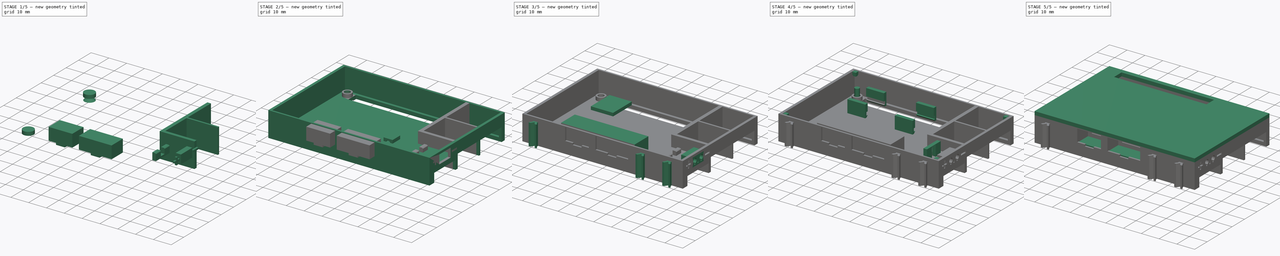
[diagram: build sequence overview — one tinted view per stage of 5, left to right]
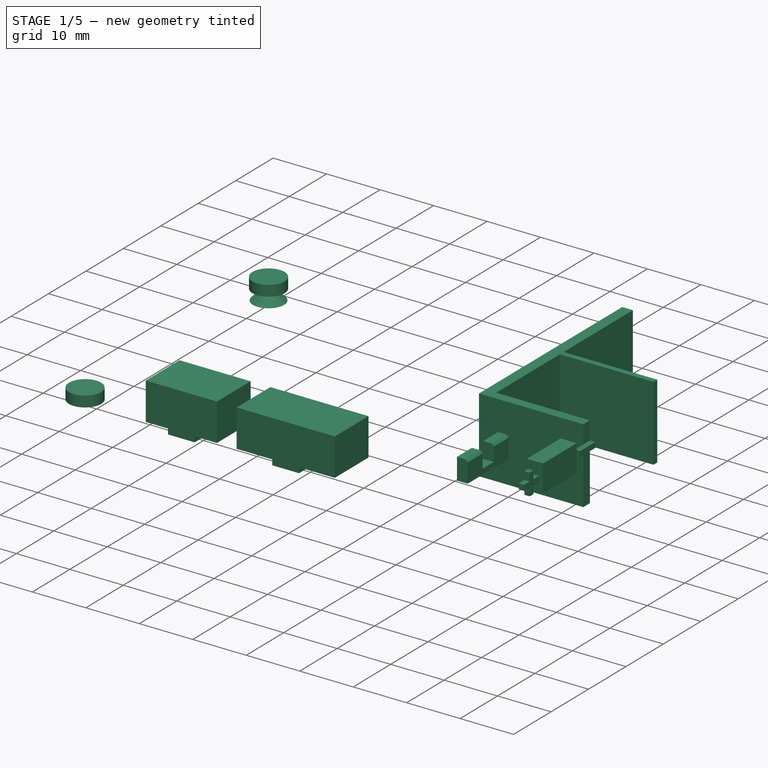
[diagram: stage 1 of 5 — iso view after this stage's code; geometry added in this stage tinted green]
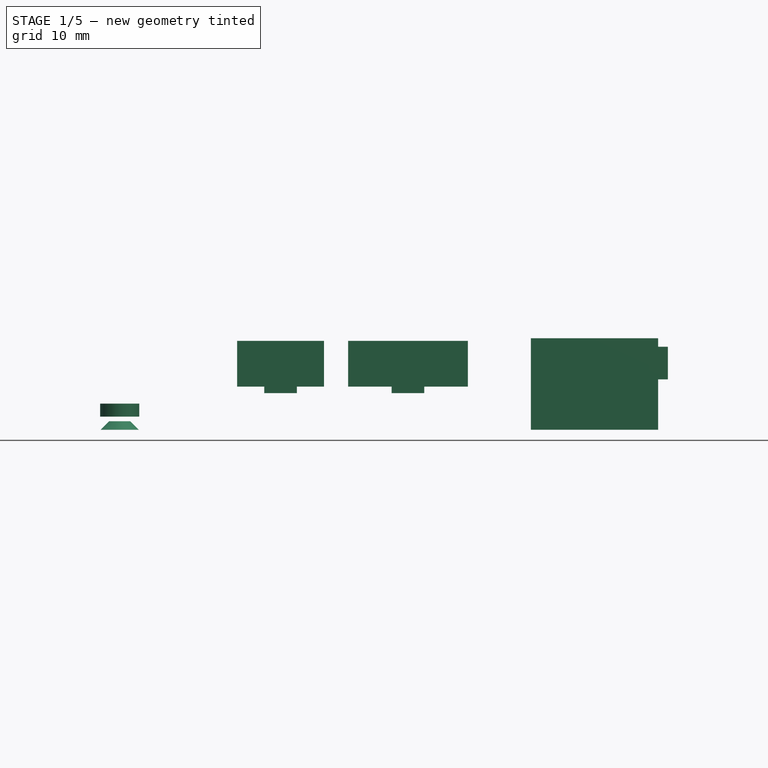
[diagram: stage 1 of 5 — front view after this stage's code; geometry added in this stage tinted green]
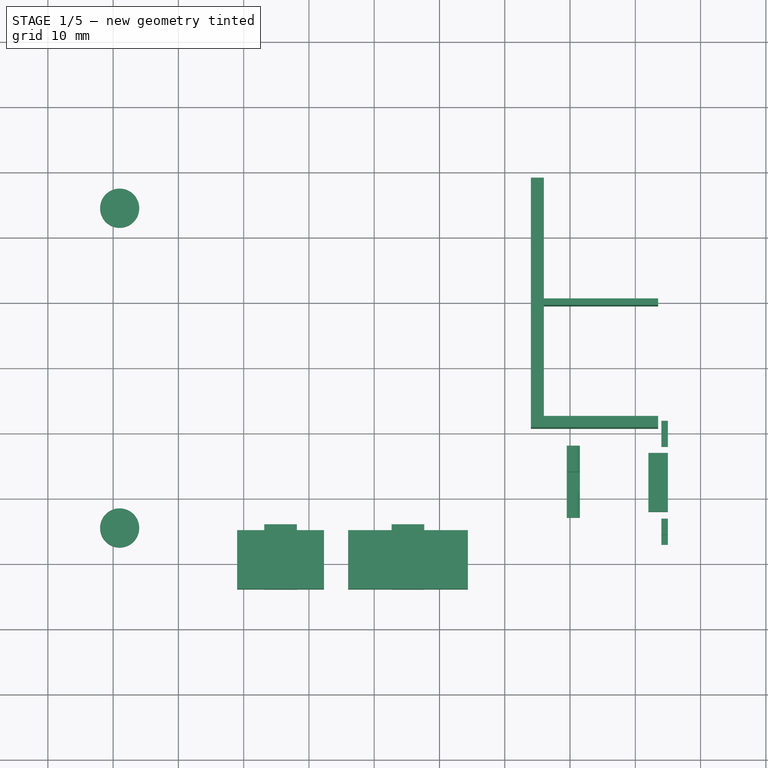
[diagram: stage 1 of 5 — top view after this stage's code; geometry added in this stage tinted green]
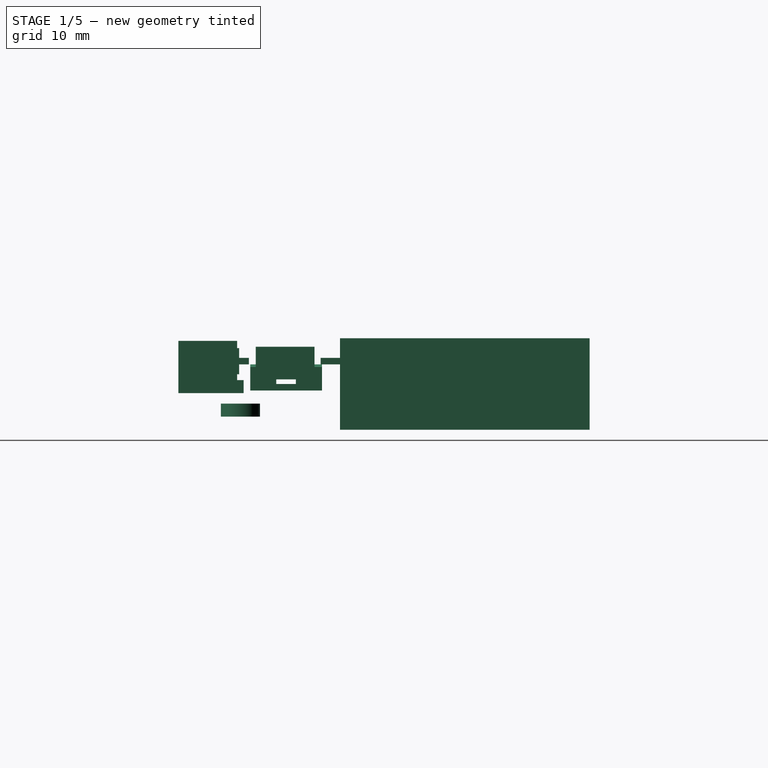
[diagram: stage 1 of 5 — right view after this stage's code; geometry added in this stage tinted green]
FCSTD DOCUMENT  (FreeCAD 0.18RUnknown)
Label: TX-Pi_I2C_Power_Shield_Buchsen
License: All rights reserved
LicenseURL: http://en.wikipedia.org/wiki/All_rights_reserved
objects: Part::Box×42, Part::MultiFuse×34, Part::Cylinder×17, Part::Cut×14, Sketcher::SketchObject×11, Part::Extrusion×11, Part::Chamfer×9
note: 138 computed .brp shape members not serialized (recipe doc carries the construction recipe); baked Part::Feature solids carry a one-line shape summary decoded from their .brp

FEATURE [Part::Cylinder] Cylinder003  label="Zylinder003"
  Angle = 360
  AttacherType = Attacher::AttachEngine3D
  Height = 2
  Placement = pos=(-39,24.5,2) rot=(0,0,1;0rad)
  Radius = 3
FEATURE [Part::Cylinder] Cylinder002  label="Zylinder002"
  Angle = 360
  AttacherType = Attacher::AttachEngine3D
  Height = 2
  Placement = pos=(-39,-24.5,2) rot=(0,0,1;0rad)
  Radius = 3
FEATURE [Part::Cylinder] Cylinder  label="Zylinder"
  Angle = 360
  AttacherType = Attacher::AttachEngine3D
  Height = 2
  Placement = pos=(-39,-24.5,2) rot=(0,0,1;0rad)
  Radius = 3
FEATURE [Part::Cylinder] Cylinder001  label="Zylinder001"
  Angle = 360
  AttacherType = Attacher::AttachEngine3D
  Height = 2
  Placement = pos=(-39,24.5,2) rot=(0,0,1;0rad)
  Radius = 2.5
FEATURE [Part::MultiFuse] Fusion
  Shapes = -> [Cylinder,Cylinder001]
FEATURE [Part::Cylinder] Cylinder008  label="Zylinder008"
  Angle = 360
  AttacherType = Attacher::AttachEngine3D
  Height = 1.3
  Radius = 2.9
FEATURE [Part::Chamfer] Chamfer001  label="Ansenkung 4"
  Base = -> Cylinder008
  Edges = 1 edges r=1.29: [Edge1]
  Placement = pos=(-39,24.5,0) rot=(0,0,1;0rad)
FEATURE [Part::Box] Box006  label="Würfel004"
  AttacherType = Attacher::AttachEngine3D
  Height = 14
  Length = 17.5
  Placement = pos=(26,-9.25,0) rot=(0,0,1;0rad)
  Width = 1.75
FEATURE [Part::Box] Box007  label="Würfel005"
  AttacherType = Attacher::AttachEngine3D
  Height = 14
  Length = 19.5
  Placement = pos=(24,9.5,0) rot=(0,0,1;0rad)
  Width = 1
FEATURE [Part::Box] Box008  label="Würfel006"
  AttacherType = Attacher::AttachEngine3D
  Height = 14
  Length = 2
  Placement = pos=(24,-9.25,0) rot=(0,0,1;0rad)
  Width = 38.25
FEATURE [Part::MultiFuse] Fusion009  label="Verstärkungen"
  Shapes = -> [Box006,Box007,Box008]
FEATURE [Part::Box] Box019  label="Buchsenöffnung"
  AttacherType = Attacher::AttachEngine3D
  Height = 5
  Length = 3
  Placement = pos=(42,-22.15,7.7) rot=(0,0,1;0rad)
  Width = 9
FEATURE [Part::Box] Box020  label="Würfel015"
  AttacherType = Attacher::AttachEngine3D
  Height = 1
  Length = 1
  Placement = pos=(0,0,20) rot=(0,0,1;0rad)
  Width = 4
FEATURE [Part::Box] Box021  label="Würfel016"
  AttacherType = Attacher::AttachEngine3D
  Height = 4
  Length = 1
  Placement = pos=(0,1.5,18.5) rot=(0,0,1;0rad)
  Width = 1
FEATURE [Part::Box] Box022  label="Würfel017"
  AttacherType = Attacher::AttachEngine3D
  Height = 1
  Length = 1
  Placement = pos=(0,15,20) rot=(0,0,1;0rad)
  Width = 4
FEATURE [Part::MultiFuse] Fusion025  label="+-"
  Placement = pos=(44,-27.2,-10) rot=(0,0,1;0rad)
  Shapes = -> [Box022,Box020,Box021]
FEATURE [Part::Box] Box025  label="Stütze"
  AttacherType = Attacher::AttachEngine3D
  Height = 4
  Length = 2
  Placement = pos=(29.5,-23,6) rot=(0,0,1;0rad)
  Width = 11
FEATURE [Part::Chamfer] Chamfer003
  Base = -> Box025
  Edges = 1 edges r=0.4: [Edge6]
FEATURE [Part::Box] Box027  label="Buchsenstütze002"
  AttacherType = Attacher::AttachEngine3D
  Height = 7
  Length = 2
  Placement = pos=(29.5,-19,7) rot=(0,0,1;0rad)
  Width = 3
FEATURE [Part::Cut] Cut008  label="Widerlager"
  Base = -> Chamfer003
  Tool = -> Box027
FEATURE [Part::Box] Box042  label="Buchse 6-pin002"
  AttacherType = Attacher::AttachEngine3D
  Height = 7
  Length = 13.3
  Placement = pos=(-20,-34,7.6) rot=(0,0,1;0rad)
  Width = 9
FEATURE [Part::Box] Box043  label="Buchse 10-pin002"
  AttacherType = Attacher::AttachEngine3D
  Height = 7
  Length = 18.35
  Placement = pos=(-3,-34,7.6) rot=(0,0,1;0rad)
  Width = 9
FEATURE [Part::Box] Box044  label="Nut1"
  AttacherType = Attacher::AttachEngine3D
  Height = 2
  Length = 5
  Placement = pos=(-15.85,-34,6.6) rot=(0,0,1;0rad)
  Width = 10
FEATURE [Part::Box] Box045  label="Nut2"
  AttacherType = Attacher::AttachEngine3D
  Height = 2
  Length = 5
  Placement = pos=(3.66,-34,6.6) rot=(0,0,1;0rad)
  Width = 10
FEATURE [Part::MultiFuse] Fusion034  label="Buchsendurchbrueche Wanne"
  Placement = pos=(-1,0,-1) rot=(0,0,1;0rad)
  Shapes = -> [Box044,Box045,Box042,Box043]
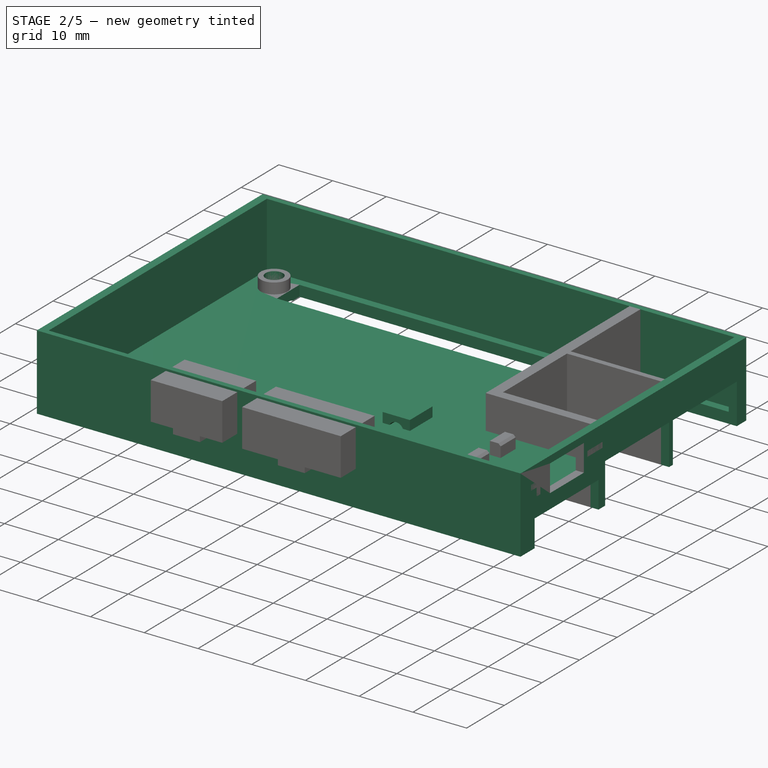
[diagram: stage 2 of 5 — iso view after this stage's code; geometry added in this stage tinted green]
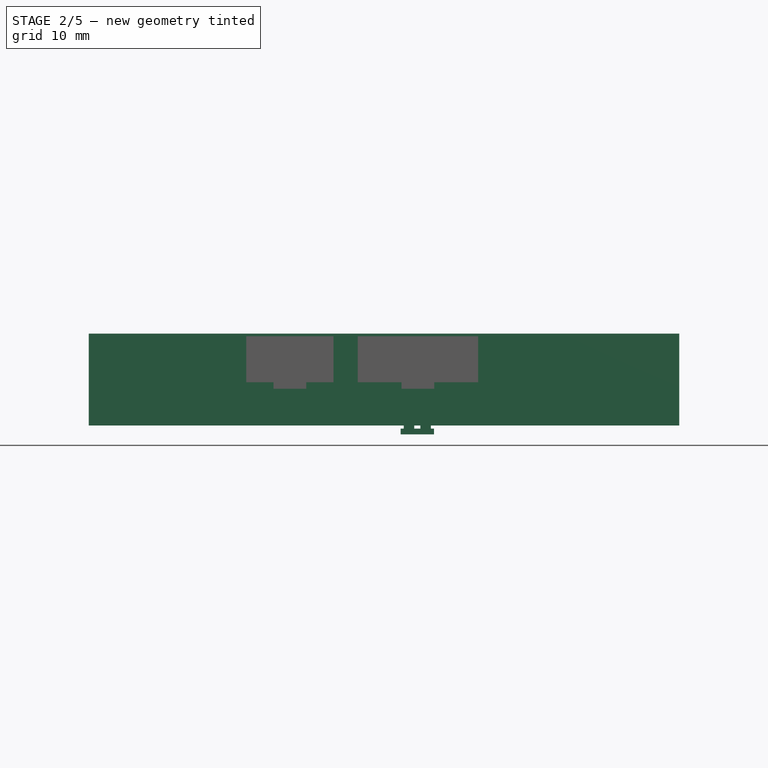
[diagram: stage 2 of 5 — front view after this stage's code; geometry added in this stage tinted green]
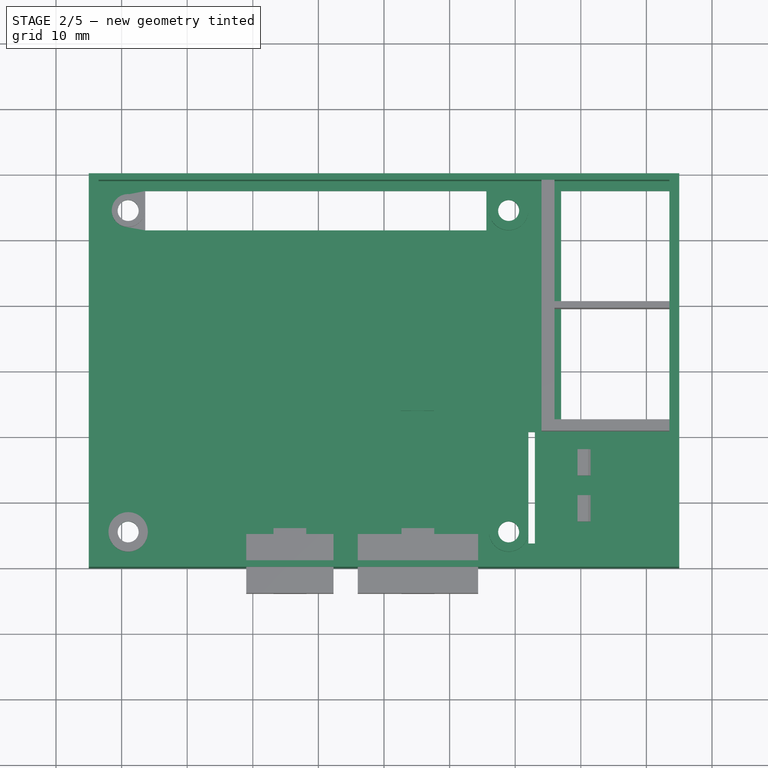
[diagram: stage 2 of 5 — top view after this stage's code; geometry added in this stage tinted green]
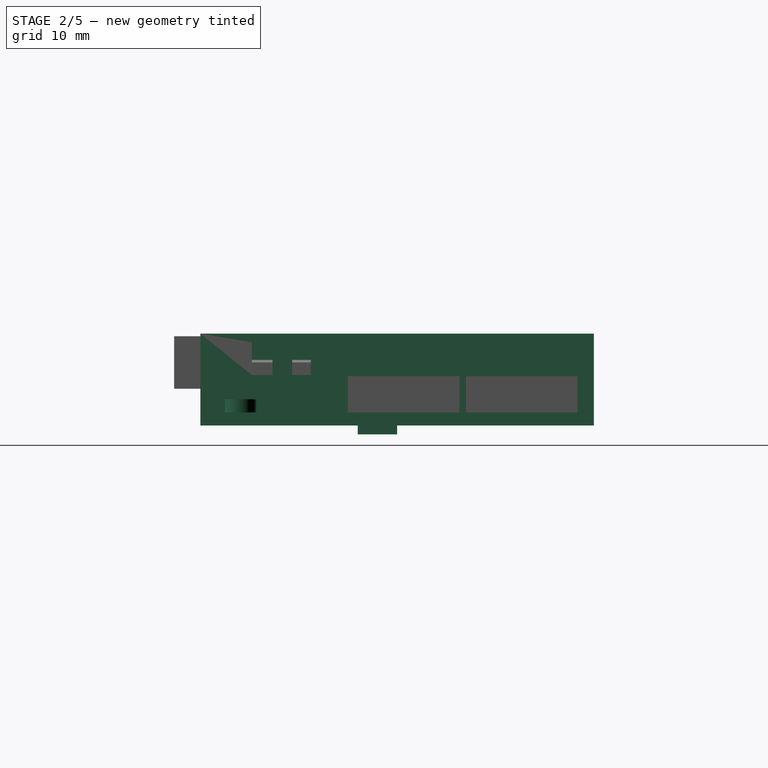
[diagram: stage 2 of 5 — right view after this stage's code; geometry added in this stage tinted green]
FEATURE [Part::MultiFuse] Fusion001
  Placement = pos=(58,0,0) rot=(0,0,1;0rad)
  Shapes = -> [Cylinder002,Cylinder003]
FEATURE [Part::Cylinder] Cylinder006  label="Zylinder006"
  Angle = 360
  AttacherType = Attacher::AttachEngine3D
  Height = 4
  Placement = pos=(-39,-24.5,0) rot=(0,0,1;0rad)
  Radius = 1.6
FEATURE [Part::Box] Box001  label="Grundkoerper innen"
  AttacherType = Attacher::AttachEngine3D
  Height = 12
  Length = 87
  Placement = pos=(-43.5,-29,2) rot=(0,0,1;0rad)
  Width = 58
FEATURE [Part::Box] Box  label="Grundkoerper aussen"
  AttacherType = Attacher::AttachEngine3D
  Height = 14
  Length = 90
  Placement = pos=(-45,-30,0) rot=(0,0,1;0rad)
  Width = 60
FEATURE [Part::Cut] Cut  label="Wanne roh 01"
  Base = -> Box
  Tool = -> Box001
FEATURE [Part::Cylinder] Cylinder004  label="Zylinder004"
  Angle = 360
  AttacherType = Attacher::AttachEngine3D
  Height = 4
  Placement = pos=(-39,24.5,0) rot=(0,0,1;0rad)
  Radius = 1.6
FEATURE [Part::Cylinder] Cylinder005  label="Zylinder005"
  Angle = 360
  AttacherType = Attacher::AttachEngine3D
  Height = 4
  Placement = pos=(-39,-24.5,0) rot=(0,0,1;0rad)
  Radius = 1.6
FEATURE [Part::MultiFuse] Fusion003
  Placement = pos=(58,0,0) rot=(0,0,1;0rad)
  Shapes = -> [Cylinder005,Cylinder004]
FEATURE [Part::MultiFuse] Fusion002  label="Stuetzen"
  Shapes = -> [Fusion,Fusion001]
FEATURE [Part::Cylinder] Cylinder007  label="Zylinder007"
  Angle = 360
  AttacherType = Attacher::AttachEngine3D
  Height = 4
  Placement = pos=(-39,24.5,0) rot=(0,0,1;0rad)
  Radius = 1.6
FEATURE [Part::MultiFuse] Fusion004
  Shapes = -> [Cylinder006,Cylinder007]
FEATURE [Part::MultiFuse] Fusion005  label="Bohrungen"
  Shapes = -> [Fusion004,Fusion003]
FEATURE [Part::Box] Box002  label="Würfel"
  AttacherType = Attacher::AttachEngine3D
  Height = 5
  Length = 23
  Placement = pos=(-45,9.25,0) rot=(0,0,1;0rad)
  Width = 17
FEATURE [Part::Box] Box003  label="Würfel003"
  AttacherType = Attacher::AttachEngine3D
  Height = 2
  Length = 52
  Placement = pos=(-15.61,-27.5,0) rot=(0,0,1;0rad)
  Width = 6
FEATURE [Part::Box] Box004  label="Würfel002"
  AttacherType = Attacher::AttachEngine3D
  Height = 7.5
  Length = 18
  Placement = pos=(-45,-27.5,0) rot=(0,0,1;0rad)
  Width = 17
FEATURE [Part::Box] Box005  label="Würfel001"
  AttacherType = Attacher::AttachEngine3D
  Height = 7.5
  Length = 18
  Placement = pos=(-45,-9.5,0) rot=(0,0,1;0rad)
  Width = 17
FEATURE [Part::MultiFuse] Fusion006  label="Ausschnitte"
  Placement = pos=(0,0,0) rot=(0,0,1;3.14159rad)
  Shapes = -> [Box002,Box003,Box004,Box005]
FEATURE [Part::MultiFuse] Fusion007  label="Aussparungen"
  Shapes = -> [Fusion005,Fusion006]
FEATURE [Part::MultiFuse] Fusion008  label="Wanne roh mit Stuetzen"
  Shapes = -> [Cut,Fusion002]
FEATURE [Part::Cut] Cut001  label="Wanne mit Aussparungen"
  Base = -> Fusion008
  Tool = -> Fusion007
FEATURE [Part::Chamfer] Chamfer  label="Ansenkungen 1-3"
  Base = -> Cut001
  Edges = 3 edges r=1.3: [Edge29,Edge30,Edge36]
FEATURE [Part::Cut] Cut002  label="Wanne roh fertig"
  Base = -> Chamfer
  Tool = -> Chamfer001
FEATURE [Part::MultiFuse] Fusion010  label="Wanne mit Verstärkungen"
  Shapes = -> [Cut002,Fusion009]
FEATURE [Sketcher::SketchObject] Sketch027  label="Printbuchse generic sketch001"
  MapMode = 5
  sketch-geometry (17):
    g0: LineSegment StartX=-2.54 StartY=-3.83 StartZ=0 EndX=2.54 EndY=-3.83 EndZ=0
    g1: LineSegment StartX=2.54 StartY=-3.83 StartZ=0 EndX=2.54 EndY=-0.47 EndZ=0
    g2: LineSegment StartX=2.54 StartY=1.35 StartZ=0 EndX=-2.54 EndY=1.35 EndZ=0
    g3: LineSegment StartX=-2.54 StartY=1.35 StartZ=0 EndX=-2.54 EndY=0.47 EndZ=0
    g4: LineSegment StartX=2.54 StartY=0.47 StartZ=0 EndX=2.07 EndY=0.47 EndZ=0
    g5: LineSegment StartX=2.07 StartY=0.47 StartZ=0 EndX=2.07 EndY=-0.47 EndZ=0
    g6: LineSegment StartX=2.07 StartY=-0.47 StartZ=0 EndX=2.54 EndY=-0.47 EndZ=0
    g7: LineSegment StartX=-2.54 StartY=0.47 StartZ=0 EndX=-2.07 EndY=0.47 EndZ=0
    g8: LineSegment StartX=-2.07 StartY=0.47 StartZ=0 EndX=-2.07 EndY=-0.47 EndZ=0
    g9: LineSegment StartX=-2.07 StartY=-0.47 StartZ=0 EndX=-2.54 EndY=-0.47 EndZ=0
    g10: LineSegment StartX=2.54 StartY=0.47 StartZ=0 EndX=2.54 EndY=1.35 EndZ=0
    g11: LineSegment StartX=-2.54 StartY=-0.47 StartZ=0 EndX=-2.54 EndY=-3.83 EndZ=0
    g12: ArcOfCircle CenterX=0 CenterY=-1.44 CenterZ=0 NormalX=0 NormalY=0 NormalZ=1 AngleXU=0 Radius=1.35 StartAngle=1.92639 EndAngle=7.49839
    g13: LineSegment StartX=-0.47 StartY=-0.174457 StartZ=0 EndX=-0.47 EndY=0.47 EndZ=0
    g14: LineSegment StartX=-0.47 StartY=0.47 StartZ=0 EndX=0.47 EndY=0.47 EndZ=0
    g15: LineSegment StartX=0.47 StartY=0.47 StartZ=0 EndX=0.47 EndY=-0.174457 EndZ=0
    g16: LineSegment [constr] StartX=0 StartY=-0.174457 StartZ=0 EndX=0.47 EndY=-0.174457 EndZ=0
  constraints (49):
    c: Coincident(g0,g1)
    c: Coincident(g10,g2)
    c: Coincident(g2,g3)
    c: Coincident(g11,g0)
    c: Horizontal(g0)
    c: Vertical(g3)
    c: DistanceX(g2,g2) = 5.08
    c: Symmetric(g2,g10,g-2)
    c: Horizontal(g4)
    c: Coincident(g4,g5)
    c: Vertical(g5)
    c: Coincident(g5,g6)
    c: Horizontal(g6)
    c: Coincident(g7,g8)
    c: Vertical(g8)
    c: Coincident(g8,g9)
    c: Horizontal(g9)
    c: Horizontal(g7)
    c: Coincident(g1,g6)
    c: Coincident(g10,g4)
    c: Tangent(g1,g10)
    c: Coincident(g3,g7)
    c: Coincident(g11,g9)
    c: Tangent(g3,g11)
    c: Symmetric(g4,g1,g-1)
    c: Equal(g7,g4)
    c: Equal(g8,g5)
    c: Horizontal(g7,g4)
    c: PointOnObject(g12,g-2)
    c: DistanceY(g0,g2) = 5.18
    c: DistanceY(g12,g-1) = 1.44
    c: DistanceY(g12,g2) = 2.79
    c: DistanceY(g0,g12) = 2.39
    c: Radius(g12) = 1.35
    c: Horizontal(g12,g12)
    c: Coincident(g12,g13)
    c: Vertical(g13)
    c: Coincident(g13,g14)
    c: Horizontal(g14)
    c: Coincident(g14,g15)
    c: Coincident(g15,g12)
    c: Vertical(g15)
    c: Horizontal(g14,g4)
    c: Equal(g16,g4)
    c: Horizontal(g16)
    c: DistanceX(g14,g14) = 0.94
    c: Equal(g5,g14)
    c: PointOnObject(g16,g-2)
    c: Coincident(g16,g12)
FEATURE [Part::Extrusion] Extrude013  label="Buchse001"
  Base = -> Sketch027
  Dir = (0,0,1)
  DirMode = 2
  FaceMakerClass = Part::FaceMakerBullseye
  LengthFwd = 6
  LengthRev = 0
  Placement = pos=(5.08,0,0) rot=(0,0.707107,-0.707107;3.14159rad)
  Solid = true
  Symmetric = false
FEATURE [Part::Box] Box018  label="Buchsenboden"
  AttacherType = Attacher::AttachEngine3D
  Height = 2
  Length = 22
  Placement = pos=(23,-29,5.65) rot=(0,0,1;0rad)
  Width = 20
FEATURE [Part::Cut] Cut005  label="Wanne mit Buchsenöffnung"
  Base = -> Fusion010
  Tool = -> Box019
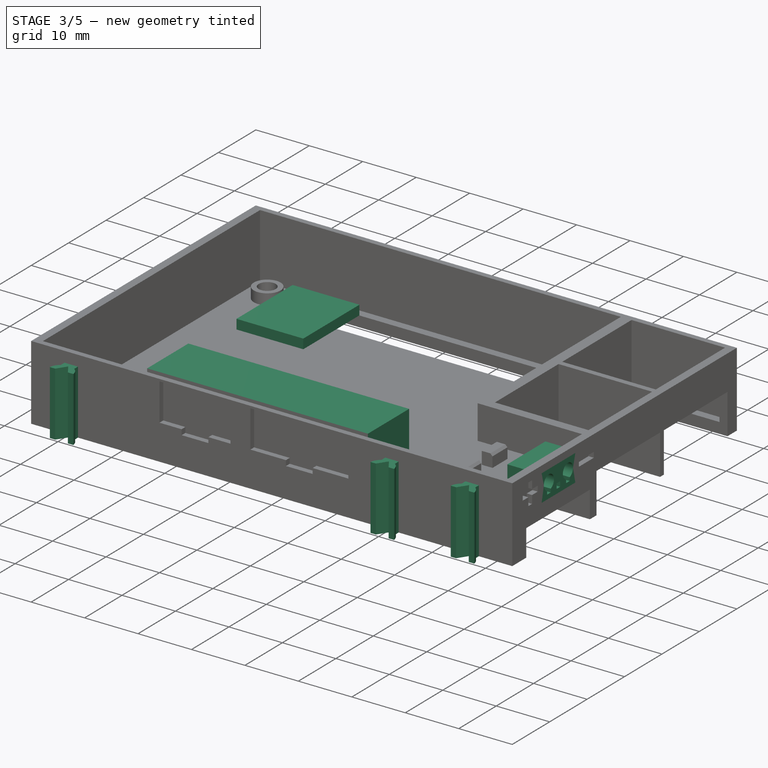
[diagram: stage 3 of 5 — iso view after this stage's code; geometry added in this stage tinted green]
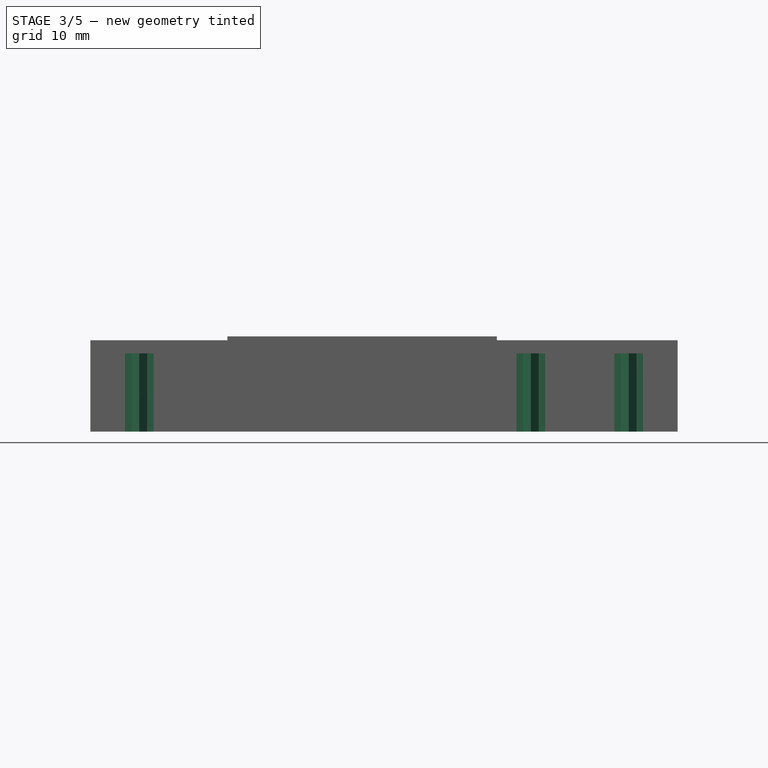
[diagram: stage 3 of 5 — front view after this stage's code; geometry added in this stage tinted green]
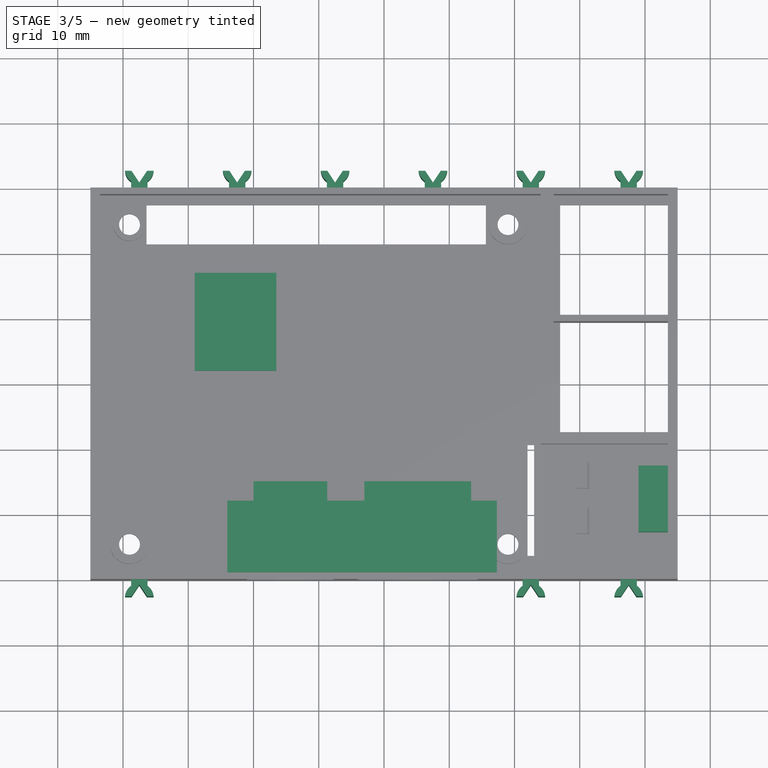
[diagram: stage 3 of 5 — top view after this stage's code; geometry added in this stage tinted green]
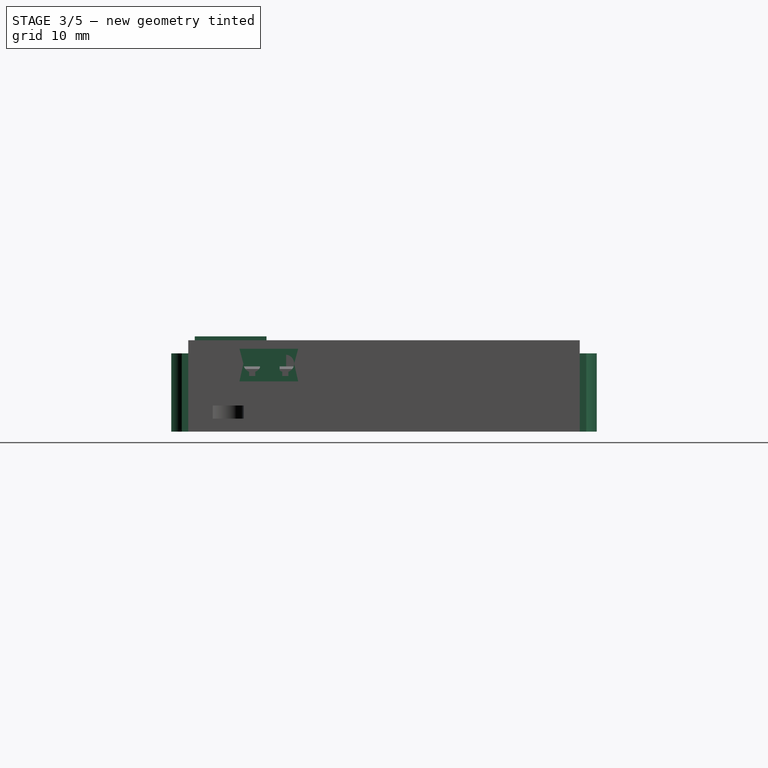
[diagram: stage 3 of 5 — right view after this stage's code; geometry added in this stage tinted green]
FEATURE [Sketcher::SketchObject] Sketch007
  MapMode = 5
  Placement = pos=(0,0,0) rot=(1,0,0;3.14159rad)
  sketch-geometry (13):
    g0: GeomPoint [constr] X=-37.5 Y=30 Z=0
    g1: LineSegment StartX=-38.75 StartY=30 StartZ=0 EndX=-36.25 EndY=30 EndZ=0
    g2: LineSegment StartX=-38.75 StartY=30 StartZ=0 EndX=-38.75 EndY=31 EndZ=0
    g3: LineSegment StartX=-36.25 StartY=30 StartZ=0 EndX=-36.25 EndY=31 EndZ=0
    g4: LineSegment [constr] StartX=-38.75 StartY=31 StartZ=0 EndX=-36.25 EndY=31 EndZ=0
    g5: ArcOfCircle CenterX=-37.5 CenterY=32.8104 CenterZ=0 NormalX=0 NormalY=0 NormalZ=1 AngleXU=0 Radius=2.2 StartAngle=3.23737 EndAngle=4.10809
    g6: ArcOfCircle CenterX=-37.5 CenterY=32.8104 CenterZ=0 NormalX=0 NormalY=0 NormalZ=1 AngleXU=0 Radius=2.2 StartAngle=5.31668 EndAngle=6.18741
    g7: LineSegment StartX=-39.6899 StartY=32.6 StartZ=0 EndX=-38.6899 EndY=32.6 EndZ=0
    g8: LineSegment StartX=-35.3101 StartY=32.6 StartZ=0 EndX=-36.3101 EndY=32.6 EndZ=0
    g9: LineSegment [constr] StartX=-38.6899 StartY=32.6 StartZ=0 EndX=-36.3101 EndY=32.6 EndZ=0
    g10: LineSegment StartX=-38.6899 StartY=32.6 StartZ=0 EndX=-37.5 EndY=30.8104 EndZ=0
    g11: LineSegment StartX=-37.5 StartY=30.8104 StartZ=0 EndX=-36.3101 EndY=32.6 EndZ=0
    g12: LineSegment [constr] StartX=-37.5 StartY=32.8104 StartZ=0 EndX=-37.5 EndY=30.8104 EndZ=0
  constraints (33):
    c: DistanceX(g0,g-1) = 37.5
    c: Symmetric(g1,g1,g0)
    c: DistanceX(g1,g1) = 2.5
    c: Vertical(g2)
    c: Vertical(g3)
    c: Coincident(g4,g2)
    c: Coincident(g4,g3)
    c: Coincident(g2,g1)
    c: Coincident(g1,g3)
    c: DistanceY(g1,g3) = 1
    c: Horizontal(g4)
    c: Coincident(g5,g2)
    c: Coincident(g6,g3)
    c: Radius(g5) = 2.2
    c: Equal(g5,g6)
    c: Coincident(g7,g5)
    c: Horizontal(g7)
    c: Coincident(g8,g6)
    c: Horizontal(g8)
    c: DistanceY(g1,g6) = 2.6
    c: DistanceX(g5,g7) = 1
    c: DistanceX(g8,g6) = 1
    c: Coincident(g9,g7)
    c: Coincident(g9,g8)
    c: Horizontal(g9)
    c: Coincident(g6,g5)
    c: Coincident(g10,g7)
    c: Coincident(g11,g8)
    c: Coincident(g10,g11)
    c: Coincident(g12,g5)
    c: Coincident(g12,g10)
    c: Vertical(g12)
    c: DistanceY(g10,g5) = 2
FEATURE [Part::Extrusion] Extrude
  Base = -> Sketch007
  Dir = (0,0,1)
  DirMode = 0
  FaceMakerClass = Part::FaceMakerBullseye
  LengthFwd = 12
  LengthRev = 0
  Solid = true
  Symmetric = false
FEATURE [Sketcher::SketchObject] Sketch011
  MapMode = 5
  Placement = pos=(0,0,0) rot=(1,0,0;3.14159rad)
  sketch-geometry (13):
    g0: GeomPoint [constr] X=-37.5 Y=30 Z=0
    g1: LineSegment StartX=-38.75 StartY=30 StartZ=0 EndX=-36.25 EndY=30 EndZ=0
    g2: LineSegment StartX=-38.75 StartY=30 StartZ=0 EndX=-38.75 EndY=31 EndZ=0
    g3: LineSegment StartX=-36.25 StartY=30 StartZ=0 EndX=-36.25 EndY=31 EndZ=0
    g4: LineSegment [constr] StartX=-38.75 StartY=31 StartZ=0 EndX=-36.25 EndY=31 EndZ=0
    g5: ArcOfCircle CenterX=-37.5 CenterY=32.8104 CenterZ=0 NormalX=0 NormalY=0 NormalZ=1 AngleXU=0 Radius=2.2 StartAngle=3.23737 EndAngle=4.10809
    g6: ArcOfCircle CenterX=-37.5 CenterY=32.8104 CenterZ=0 NormalX=0 NormalY=0 NormalZ=1 AngleXU=0 Radius=2.2 StartAngle=5.31668 EndAngle=6.18741
    g7: LineSegment StartX=-39.6899 StartY=32.6 StartZ=0 EndX=-38.6899 EndY=32.6 EndZ=0
    g8: LineSegment StartX=-35.3101 StartY=32.6 StartZ=0 EndX=-36.3101 EndY=32.6 EndZ=0
    g9: LineSegment [constr] StartX=-38.6899 StartY=32.6 StartZ=0 EndX=-36.3101 EndY=32.6 EndZ=0
    g10: LineSegment StartX=-38.6899 StartY=32.6 StartZ=0 EndX=-37.5 EndY=30.8104 EndZ=0
    g11: LineSegment StartX=-37.5 StartY=30.8104 StartZ=0 EndX=-36.3101 EndY=32.6 EndZ=0
    g12: LineSegment [constr] StartX=-37.5 StartY=32.8104 StartZ=0 EndX=-37.5 EndY=30.8104 EndZ=0
  constraints (33):
    c: DistanceX(g0,g-1) = 37.5
    c: Symmetric(g1,g1,g0)
    c: DistanceX(g1,g1) = 2.5
    c: Vertical(g2)
    c: Vertical(g3)
    c: Coincident(g4,g2)
    c: Coincident(g4,g3)
    c: Coincident(g2,g1)
    c: Coincident(g1,g3)
    c: DistanceY(g1,g3) = 1
    c: Horizontal(g4)
    c: Coincident(g5,g2)
    c: Coincident(g6,g3)
    c: Radius(g5) = 2.2
    c: Equal(g5,g6)
    c: Coincident(g7,g5)
    c: Horizontal(g7)
    c: Coincident(g8,g6)
    c: Horizontal(g8)
    c: DistanceY(g1,g6) = 2.6
    c: DistanceX(g5,g7) = 1
    c: DistanceX(g8,g6) = 1
    c: Coincident(g9,g7)
    c: Coincident(g9,g8)
    c: Horizontal(g9)
    c: Coincident(g6,g5)
    c: Coincident(g10,g7)
    c: Coincident(g11,g8)
    c: Coincident(g10,g11)
    c: Coincident(g12,g5)
    c: Coincident(g12,g10)
    c: Vertical(g12)
    c: DistanceY(g10,g5) = 2
FEATURE [Part::Extrusion] Extrude004
  Base = -> Sketch011
  Dir = (0,0,1)
  DirMode = 0
  FaceMakerClass = Part::FaceMakerBullseye
  LengthFwd = 12
  LengthRev = 0
  Placement = pos=(60,0,0) rot=(0,0,1;0rad)
  Solid = true
  Symmetric = false
FEATURE [Sketcher::SketchObject] Sketch012
  MapMode = 5
  Placement = pos=(0,0,0) rot=(1,0,0;3.14159rad)
  sketch-geometry (13):
    g0: GeomPoint [constr] X=-37.5 Y=30 Z=0
    g1: LineSegment StartX=-38.75 StartY=30 StartZ=0 EndX=-36.25 EndY=30 EndZ=0
    g2: LineSegment StartX=-38.75 StartY=30 StartZ=0 EndX=-38.75 EndY=31 EndZ=0
    g3: LineSegment StartX=-36.25 StartY=30 StartZ=0 EndX=-36.25 EndY=31 EndZ=0
    g4: LineSegment [constr] StartX=-38.75 StartY=31 StartZ=0 EndX=-36.25 EndY=31 EndZ=0
    g5: ArcOfCircle CenterX=-37.5 CenterY=32.8104 CenterZ=0 NormalX=0 NormalY=0 NormalZ=1 AngleXU=0 Radius=2.2 StartAngle=3.23737 EndAngle=4.10809
    g6: ArcOfCircle CenterX=-37.5 CenterY=32.8104 CenterZ=0 NormalX=0 NormalY=0 NormalZ=1 AngleXU=0 Radius=2.2 StartAngle=5.31668 EndAngle=6.18741
    g7: LineSegment StartX=-39.6899 StartY=32.6 StartZ=0 EndX=-38.6899 EndY=32.6 EndZ=0
    g8: LineSegment StartX=-35.3101 StartY=32.6 StartZ=0 EndX=-36.3101 EndY=32.6 EndZ=0
    g9: LineSegment [constr] StartX=-38.6899 StartY=32.6 StartZ=0 EndX=-36.3101 EndY=32.6 EndZ=0
    g10: LineSegment StartX=-38.6899 StartY=32.6 StartZ=0 EndX=-37.5 EndY=30.8104 EndZ=0
    g11: LineSegment StartX=-37.5 StartY=30.8104 StartZ=0 EndX=-36.3101 EndY=32.6 EndZ=0
    g12: LineSegment [constr] StartX=-37.5 StartY=32.8104 StartZ=0 EndX=-37.5 EndY=30.8104 EndZ=0
  constraints (33):
    c: DistanceX(g0,g-1) = 37.5
    c: Symmetric(g1,g1,g0)
    c: DistanceX(g1,g1) = 2.5
    c: Vertical(g2)
    c: Vertical(g3)
    c: Coincident(g4,g2)
    c: Coincident(g4,g3)
    c: Coincident(g2,g1)
    c: Coincident(g1,g3)
    c: DistanceY(g1,g3) = 1
    c: Horizontal(g4)
    c: Coincident(g5,g2)
    c: Coincident(g6,g3)
    c: Radius(g5) = 2.2
    c: Equal(g5,g6)
    c: Coincident(g7,g5)
    c: Horizontal(g7)
    c: Coincident(g8,g6)
    c: Horizontal(g8)
    c: DistanceY(g1,g6) = 2.6
    c: DistanceX(g5,g7) = 1
    c: DistanceX(g8,g6) = 1
    c: Coincident(g9,g7)
    c: Coincident(g9,g8)
    c: Horizontal(g9)
    c: Coincident(g6,g5)
    c: Coincident(g10,g7)
    c: Coincident(g11,g8)
    c: Coincident(g10,g11)
    c: Coincident(g12,g5)
    c: Coincident(g12,g10)
    c: Vertical(g12)
    c: DistanceY(g10,g5) = 2
FEATURE [Part::Extrusion] Extrude005
  Base = -> Sketch012
  Dir = (0,0,1)
  DirMode = 0
  FaceMakerClass = Part::FaceMakerBullseye
  LengthFwd = 12
  LengthRev = 0
  Placement = pos=(75,0,0) rot=(0,0,1;0rad)
  Solid = true
  Symmetric = false
FEATURE [Sketcher::SketchObject] Sketch013
  MapMode = 5
  Placement = pos=(0,0,0) rot=(1,0,0;3.14159rad)
  sketch-geometry (13):
    g0: GeomPoint [constr] X=-37.5 Y=30 Z=0
    g1: LineSegment StartX=-38.75 StartY=30 StartZ=0 EndX=-36.25 EndY=30 EndZ=0
    g2: LineSegment StartX=-38.75 StartY=30 StartZ=0 EndX=-38.75 EndY=31 EndZ=0
    g3: LineSegment StartX=-36.25 StartY=30 StartZ=0 EndX=-36.25 EndY=31 EndZ=0
    g4: LineSegment [constr] StartX=-38.75 StartY=31 StartZ=0 EndX=-36.25 EndY=31 EndZ=0
    g5: ArcOfCircle CenterX=-37.5 CenterY=32.8104 CenterZ=0 NormalX=0 NormalY=0 NormalZ=1 AngleXU=0 Radius=2.2 StartAngle=3.23737 EndAngle=4.10809
    g6: ArcOfCircle CenterX=-37.5 CenterY=32.8104 CenterZ=0 NormalX=0 NormalY=0 NormalZ=1 AngleXU=0 Radius=2.2 StartAngle=5.31668 EndAngle=6.18741
    g7: LineSegment StartX=-39.6899 StartY=32.6 StartZ=0 EndX=-38.6899 EndY=32.6 EndZ=0
    g8: LineSegment StartX=-35.3101 StartY=32.6 StartZ=0 EndX=-36.3101 EndY=32.6 EndZ=0
    g9: LineSegment [constr] StartX=-38.6899 StartY=32.6 StartZ=0 EndX=-36.3101 EndY=32.6 EndZ=0
    g10: LineSegment StartX=-38.6899 StartY=32.6 StartZ=0 EndX=-37.5 EndY=30.8104 EndZ=0
    g11: LineSegment StartX=-37.5 StartY=30.8104 StartZ=0 EndX=-36.3101 EndY=32.6 EndZ=0
    g12: LineSegment [constr] StartX=-37.5 StartY=32.8104 StartZ=0 EndX=-37.5 EndY=30.8104 EndZ=0
  constraints (33):
    c: DistanceX(g0,g-1) = 37.5
    c: Symmetric(g1,g1,g0)
    c: DistanceX(g1,g1) = 2.5
    c: Vertical(g2)
    c: Vertical(g3)
    c: Coincident(g4,g2)
    c: Coincident(g4,g3)
    c: Coincident(g2,g1)
    c: Coincident(g1,g3)
    c: DistanceY(g1,g3) = 1
    c: Horizontal(g4)
    c: Coincident(g5,g2)
    c: Coincident(g6,g3)
    c: Radius(g5) = 2.2
    c: Equal(g5,g6)
    c: Coincident(g7,g5)
    c: Horizontal(g7)
    c: Coincident(g8,g6)
    c: Horizontal(g8)
    c: DistanceY(g1,g6) = 2.6
    c: DistanceX(g5,g7) = 1
    c: DistanceX(g8,g6) = 1
    c: Coincident(g9,g7)
    c: Coincident(g9,g8)
    c: Horizontal(g9)
    c: Coincident(g6,g5)
    c: Coincident(g10,g7)
    c: Coincident(g11,g8)
    c: Coincident(g10,g11)
    c: Coincident(g12,g5)
    c: Coincident(g12,g10)
    c: Vertical(g12)
    c: DistanceY(g10,g5) = 2
FEATURE [Sketcher::SketchObject] Sketch014
  MapMode = 5
  Placement = pos=(0,0,0) rot=(1,0,0;3.14159rad)
  sketch-geometry (13):
    g0: GeomPoint [constr] X=-37.5 Y=30 Z=0
    g1: LineSegment StartX=-38.75 StartY=30 StartZ=0 EndX=-36.25 EndY=30 EndZ=0
    g2: LineSegment StartX=-38.75 StartY=30 StartZ=0 EndX=-38.75 EndY=31 EndZ=0
    g3: LineSegment StartX=-36.25 StartY=30 StartZ=0 EndX=-36.25 EndY=31 EndZ=0
    g4: LineSegment [constr] StartX=-38.75 StartY=31 StartZ=0 EndX=-36.25 EndY=31 EndZ=0
    g5: ArcOfCircle CenterX=-37.5 CenterY=32.8104 CenterZ=0 NormalX=0 NormalY=0 NormalZ=1 AngleXU=0 Radius=2.2 StartAngle=3.23737 EndAngle=4.10809
    g6: ArcOfCircle CenterX=-37.5 CenterY=32.8104 CenterZ=0 NormalX=0 NormalY=0 NormalZ=1 AngleXU=0 Radius=2.2 StartAngle=5.31668 EndAngle=6.18741
    g7: LineSegment StartX=-39.6899 StartY=32.6 StartZ=0 EndX=-38.6899 EndY=32.6 EndZ=0
    g8: LineSegment StartX=-35.3101 StartY=32.6 StartZ=0 EndX=-36.3101 EndY=32.6 EndZ=0
    g9: LineSegment [constr] StartX=-38.6899 StartY=32.6 StartZ=0 EndX=-36.3101 EndY=32.6 EndZ=0
    g10: LineSegment StartX=-38.6899 StartY=32.6 StartZ=0 EndX=-37.5 EndY=30.8104 EndZ=0
    g11: LineSegment StartX=-37.5 StartY=30.8104 StartZ=0 EndX=-36.3101 EndY=32.6 EndZ=0
    g12: LineSegment [constr] StartX=-37.5 StartY=32.8104 StartZ=0 EndX=-37.5 EndY=30.8104 EndZ=0
  constraints (33):
    c: DistanceX(g0,g-1) = 37.5
    c: Symmetric(g1,g1,g0)
    c: DistanceX(g1,g1) = 2.5
    c: Vertical(g2)
    c: Vertical(g3)
    c: Coincident(g4,g2)
    c: Coincident(g4,g3)
    c: Coincident(g2,g1)
    c: Coincident(g1,g3)
    c: DistanceY(g1,g3) = 1
    c: Horizontal(g4)
    c: Coincident(g5,g2)
    c: Coincident(g6,g3)
    c: Radius(g5) = 2.2
    c: Equal(g5,g6)
    c: Coincident(g7,g5)
    c: Horizontal(g7)
    c: Coincident(g8,g6)
    c: Horizontal(g8)
    c: DistanceY(g1,g6) = 2.6
    c: DistanceX(g5,g7) = 1
    c: DistanceX(g8,g6) = 1
    c: Coincident(g9,g7)
    c: Coincident(g9,g8)
    c: Horizontal(g9)
    c: Coincident(g6,g5)
    c: Coincident(g10,g7)
    c: Coincident(g11,g8)
    c: Coincident(g10,g11)
    c: Coincident(g12,g5)
    c: Coincident(g12,g10)
    c: Vertical(g12)
    c: DistanceY(g10,g5) = 2
FEATURE [Part::Extrusion] Extrude006
  Base = -> Sketch014
  Dir = (0,0,1)
  DirMode = 0
  FaceMakerClass = Part::FaceMakerBullseye
  LengthFwd = 12
  LengthRev = 0
  Placement = pos=(-15,0,0) rot=(0,0,1;3.14159rad)
  Solid = true
  Symmetric = false
FEATURE [Part::Extrusion] Extrude007
  Base = -> Sketch013
  Dir = (0,0,1)
  DirMode = 0
  FaceMakerClass = Part::FaceMakerBullseye
  LengthFwd = 12
  LengthRev = 0
  Placement = pos=(0,0,0) rot=(0,0,1;3.14159rad)
  Solid = true
  Symmetric = false
FEATURE [Sketcher::SketchObject] Sketch015
  MapMode = 5
  Placement = pos=(0,0,0) rot=(1,0,0;3.14159rad)
  sketch-geometry (13):
    g0: GeomPoint [constr] X=-37.5 Y=30 Z=0
    g1: LineSegment StartX=-38.75 StartY=30 StartZ=0 EndX=-36.25 EndY=30 EndZ=0
    g2: LineSegment StartX=-38.75 StartY=30 StartZ=0 EndX=-38.75 EndY=31 EndZ=0
    g3: LineSegment StartX=-36.25 StartY=30 StartZ=0 EndX=-36.25 EndY=31 EndZ=0
    g4: LineSegment [constr] StartX=-38.75 StartY=31 StartZ=0 EndX=-36.25 EndY=31 EndZ=0
    g5: ArcOfCircle CenterX=-37.5 CenterY=32.8104 CenterZ=0 NormalX=0 NormalY=0 NormalZ=1 AngleXU=0 Radius=2.2 StartAngle=3.23737 EndAngle=4.10809
    g6: ArcOfCircle CenterX=-37.5 CenterY=32.8104 CenterZ=0 NormalX=0 NormalY=0 NormalZ=1 AngleXU=0 Radius=2.2 StartAngle=5.31668 EndAngle=6.18741
    g7: LineSegment StartX=-39.6899 StartY=32.6 StartZ=0 EndX=-38.6899 EndY=32.6 EndZ=0
    g8: LineSegment StartX=-35.3101 StartY=32.6 StartZ=0 EndX=-36.3101 EndY=32.6 EndZ=0
    g9: LineSegment [constr] StartX=-38.6899 StartY=32.6 StartZ=0 EndX=-36.3101 EndY=32.6 EndZ=0
    g10: LineSegment StartX=-38.6899 StartY=32.6 StartZ=0 EndX=-37.5 EndY=30.8104 EndZ=0
    g11: LineSegment StartX=-37.5 StartY=30.8104 StartZ=0 EndX=-36.3101 EndY=32.6 EndZ=0
    g12: LineSegment [constr] StartX=-37.5 StartY=32.8104 StartZ=0 EndX=-37.5 EndY=30.8104 EndZ=0
  constraints (33):
    c: DistanceX(g0,g-1) = 37.5
    c: Symmetric(g1,g1,g0)
    c: DistanceX(g1,g1) = 2.5
    c: Vertical(g2)
    c: Vertical(g3)
    c: Coincident(g4,g2)
    c: Coincident(g4,g3)
    c: Coincident(g2,g1)
    c: Coincident(g1,g3)
    c: DistanceY(g1,g3) = 1
    c: Horizontal(g4)
    c: Coincident(g5,g2)
    c: Coincident(g6,g3)
    c: Radius(g5) = 2.2
    c: Equal(g5,g6)
    c: Coincident(g7,g5)
    c: Horizontal(g7)
    c: Coincident(g8,g6)
    c: Horizontal(g8)
    c: DistanceY(g1,g6) = 2.6
    c: DistanceX(g5,g7) = 1
    c: DistanceX(g8,g6) = 1
    c: Coincident(g9,g7)
    c: Coincident(g9,g8)
    c: Horizontal(g9)
    c: Coincident(g6,g5)
    c: Coincident(g10,g7)
    c: Coincident(g11,g8)
    c: Coincident(g10,g11)
    c: Coincident(g12,g5)
    c: Coincident(g12,g10)
    c: Vertical(g12)
    c: DistanceY(g10,g5) = 2
FEATURE [Sketcher::SketchObject] Sketch016
  MapMode = 5
  Placement = pos=(0,0,0) rot=(1,0,0;3.14159rad)
  sketch-geometry (13):
    g0: GeomPoint [constr] X=-37.5 Y=30 Z=0
    g1: LineSegment StartX=-38.75 StartY=30 StartZ=0 EndX=-36.25 EndY=30 EndZ=0
    g2: LineSegment StartX=-38.75 StartY=30 StartZ=0 EndX=-38.75 EndY=31 EndZ=0
    g3: LineSegment StartX=-36.25 StartY=30 StartZ=0 EndX=-36.25 EndY=31 EndZ=0
    g4: LineSegment [constr] StartX=-38.75 StartY=31 StartZ=0 EndX=-36.25 EndY=31 EndZ=0
    g5: ArcOfCircle CenterX=-37.5 CenterY=32.8104 CenterZ=0 NormalX=0 NormalY=0 NormalZ=1 AngleXU=0 Radius=2.2 StartAngle=3.23737 EndAngle=4.10809
    g6: ArcOfCircle CenterX=-37.5 CenterY=32.8104 CenterZ=0 NormalX=0 NormalY=0 NormalZ=1 AngleXU=0 Radius=2.2 StartAngle=5.31668 EndAngle=6.18741
    g7: LineSegment StartX=-39.6899 StartY=32.6 StartZ=0 EndX=-38.6899 EndY=32.6 EndZ=0
    g8: LineSegment StartX=-35.3101 StartY=32.6 StartZ=0 EndX=-36.3101 EndY=32.6 EndZ=0
    g9: LineSegment [constr] StartX=-38.6899 StartY=32.6 StartZ=0 EndX=-36.3101 EndY=32.6 EndZ=0
    g10: LineSegment StartX=-38.6899 StartY=32.6 StartZ=0 EndX=-37.5 EndY=30.8104 EndZ=0
    g11: LineSegment StartX=-37.5 StartY=30.8104 StartZ=0 EndX=-36.3101 EndY=32.6 EndZ=0
    g12: LineSegment [constr] StartX=-37.5 StartY=32.8104 StartZ=0 EndX=-37.5 EndY=30.8104 EndZ=0
  constraints (33):
    c: DistanceX(g0,g-1) = 37.5
    c: Symmetric(g1,g1,g0)
    c: DistanceX(g1,g1) = 2.5
    c: Vertical(g2)
    c: Vertical(g3)
    c: Coincident(g4,g2)
    c: Coincident(g4,g3)
    c: Coincident(g2,g1)
    c: Coincident(g1,g3)
    c: DistanceY(g1,g3) = 1
    c: Horizontal(g4)
    c: Coincident(g5,g2)
    c: Coincident(g6,g3)
    c: Radius(g5) = 2.2
    c: Equal(g5,g6)
    c: Coincident(g7,g5)
    c: Horizontal(g7)
    c: Coincident(g8,g6)
    c: Horizontal(g8)
    c: DistanceY(g1,g6) = 2.6
    c: DistanceX(g5,g7) = 1
    c: DistanceX(g8,g6) = 1
    c: Coincident(g9,g7)
    c: Coincident(g9,g8)
    c: Horizontal(g9)
    c: Coincident(g6,g5)
    c: Coincident(g10,g7)
    c: Coincident(g11,g8)
    c: Coincident(g10,g11)
    c: Coincident(g12,g5)
    c: Coincident(g12,g10)
    c: Vertical(g12)
    c: DistanceY(g10,g5) = 2
FEATURE [Part::Extrusion] Extrude009
  Base = -> Sketch015
  Dir = (0,0,1)
  DirMode = 0
  FaceMakerClass = Part::FaceMakerBullseye
  LengthFwd = 12
  LengthRev = 0
  Placement = pos=(-60,0,0) rot=(0,0,1;3.14159rad)
  Solid = true
  Symmetric = false
FEATURE [Sketcher::SketchObject] Sketch017
  MapMode = 5
  Placement = pos=(0,0,0) rot=(1,0,0;3.14159rad)
  sketch-geometry (13):
    g0: GeomPoint [constr] X=-37.5 Y=30 Z=0
    g1: LineSegment StartX=-38.75 StartY=30 StartZ=0 EndX=-36.25 EndY=30 EndZ=0
    g2: LineSegment StartX=-38.75 StartY=30 StartZ=0 EndX=-38.75 EndY=31 EndZ=0
    g3: LineSegment StartX=-36.25 StartY=30 StartZ=0 EndX=-36.25 EndY=31 EndZ=0
    g4: LineSegment [constr] StartX=-38.75 StartY=31 StartZ=0 EndX=-36.25 EndY=31 EndZ=0
    g5: ArcOfCircle CenterX=-37.5 CenterY=32.8104 CenterZ=0 NormalX=0 NormalY=0 NormalZ=1 AngleXU=0 Radius=2.2 StartAngle=3.23737 EndAngle=4.10809
    g6: ArcOfCircle CenterX=-37.5 CenterY=32.8104 CenterZ=0 NormalX=0 NormalY=0 NormalZ=1 AngleXU=0 Radius=2.2 StartAngle=5.31668 EndAngle=6.18741
    g7: LineSegment StartX=-39.6899 StartY=32.6 StartZ=0 EndX=-38.6899 EndY=32.6 EndZ=0
    g8: LineSegment StartX=-35.3101 StartY=32.6 StartZ=0 EndX=-36.3101 EndY=32.6 EndZ=0
    g9: LineSegment [constr] StartX=-38.6899 StartY=32.6 StartZ=0 EndX=-36.3101 EndY=32.6 EndZ=0
    g10: LineSegment StartX=-38.6899 StartY=32.6 StartZ=0 EndX=-37.5 EndY=30.8104 EndZ=0
    g11: LineSegment StartX=-37.5 StartY=30.8104 StartZ=0 EndX=-36.3101 EndY=32.6 EndZ=0
    g12: LineSegment [constr] StartX=-37.5 StartY=32.8104 StartZ=0 EndX=-37.5 EndY=30.8104 EndZ=0
  constraints (33):
    c: DistanceX(g0,g-1) = 37.5
    c: Symmetric(g1,g1,g0)
    c: DistanceX(g1,g1) = 2.5
    c: Vertical(g2)
    c: Vertical(g3)
    c: Coincident(g4,g2)
    c: Coincident(g4,g3)
    c: Coincident(g2,g1)
    c: Coincident(g1,g3)
    c: DistanceY(g1,g3) = 1
    c: Horizontal(g4)
    c: Coincident(g5,g2)
    c: Coincident(g6,g3)
    c: Radius(g5) = 2.2
    c: Equal(g5,g6)
    c: Coincident(g7,g5)
    c: Horizontal(g7)
    c: Coincident(g8,g6)
    c: Horizontal(g8)
    c: DistanceY(g1,g6) = 2.6
    c: DistanceX(g5,g7) = 1
    c: DistanceX(g8,g6) = 1
    c: Coincident(g9,g7)
    c: Coincident(g9,g8)
    c: Horizontal(g9)
    c: Coincident(g6,g5)
    c: Coincident(g10,g7)
    c: Coincident(g11,g8)
    c: Coincident(g10,g11)
    c: Coincident(g12,g5)
    c: Coincident(g12,g10)
    c: Vertical(g12)
    c: DistanceY(g10,g5) = 2
FEATURE [Part::Extrusion] Extrude010
  Base = -> Sketch017
  Dir = (0,0,1)
  DirMode = 0
  FaceMakerClass = Part::FaceMakerBullseye
  LengthFwd = 12
  LengthRev = 0
  Placement = pos=(-45,0,0) rot=(0,0,1;3.14159rad)
  Solid = true
  Symmetric = false
FEATURE [Sketcher::SketchObject] Sketch018
  MapMode = 5
  Placement = pos=(0,0,0) rot=(1,0,0;3.14159rad)
  sketch-geometry (13):
    g0: GeomPoint [constr] X=-37.5 Y=30 Z=0
    g1: LineSegment StartX=-38.75 StartY=30 StartZ=0 EndX=-36.25 EndY=30 EndZ=0
    g2: LineSegment StartX=-38.75 StartY=30 StartZ=0 EndX=-38.75 EndY=31 EndZ=0
    g3: LineSegment StartX=-36.25 StartY=30 StartZ=0 EndX=-36.25 EndY=31 EndZ=0
    g4: LineSegment [constr] StartX=-38.75 StartY=31 StartZ=0 EndX=-36.25 EndY=31 EndZ=0
    g5: ArcOfCircle CenterX=-37.5 CenterY=32.8104 CenterZ=0 NormalX=0 NormalY=0 NormalZ=1 AngleXU=0 Radius=2.2 StartAngle=3.23737 EndAngle=4.10809
    g6: ArcOfCircle CenterX=-37.5 CenterY=32.8104 CenterZ=0 NormalX=0 NormalY=0 NormalZ=1 AngleXU=0 Radius=2.2 StartAngle=5.31668 EndAngle=6.18741
    g7: LineSegment StartX=-39.6899 StartY=32.6 StartZ=0 EndX=-38.6899 EndY=32.6 EndZ=0
    g8: LineSegment StartX=-35.3101 StartY=32.6 StartZ=0 EndX=-36.3101 EndY=32.6 EndZ=0
    g9: LineSegment [constr] StartX=-38.6899 StartY=32.6 StartZ=0 EndX=-36.3101 EndY=32.6 EndZ=0
    g10: LineSegment StartX=-38.6899 StartY=32.6 StartZ=0 EndX=-37.5 EndY=30.8104 EndZ=0
    g11: LineSegment StartX=-37.5 StartY=30.8104 StartZ=0 EndX=-36.3101 EndY=32.6 EndZ=0
    g12: LineSegment [constr] StartX=-37.5 StartY=32.8104 StartZ=0 EndX=-37.5 EndY=30.8104 EndZ=0
  constraints (33):
    c: DistanceX(g0,g-1) = 37.5
    c: Symmetric(g1,g1,g0)
    c: DistanceX(g1,g1) = 2.5
    c: Vertical(g2)
    c: Vertical(g3)
    c: Coincident(g4,g2)
    c: Coincident(g4,g3)
    c: Coincident(g2,g1)
    c: Coincident(g1,g3)
    c: DistanceY(g1,g3) = 1
    c: Horizontal(g4)
    c: Coincident(g5,g2)
    c: Coincident(g6,g3)
    c: Radius(g5) = 2.2
    c: Equal(g5,g6)
    c: Coincident(g7,g5)
    c: Horizontal(g7)
    c: Coincident(g8,g6)
    c: Horizontal(g8)
    c: DistanceY(g1,g6) = 2.6
    c: DistanceX(g5,g7) = 1
    c: DistanceX(g8,g6) = 1
    c: Coincident(g9,g7)
    c: Coincident(g9,g8)
    c: Horizontal(g9)
    c: Coincident(g6,g5)
    c: Coincident(g10,g7)
    c: Coincident(g11,g8)
    c: Coincident(g10,g11)
    c: Coincident(g12,g5)
    c: Coincident(g12,g10)
    c: Vertical(g12)
    c: DistanceY(g10,g5) = 2
FEATURE [Part::Extrusion] Extrude008
  Base = -> Sketch018
  Dir = (0,0,1)
  DirMode = 0
  FaceMakerClass = Part::FaceMakerBullseye
  LengthFwd = 12
  LengthRev = 0
  Placement = pos=(-30,0,0) rot=(0,0,1;3.14159rad)
  Solid = true
  Symmetric = false
FEATURE [Part::Extrusion] Extrude011
  Base = -> Sketch016
  Dir = (0,0,1)
  DirMode = 0
  FaceMakerClass = Part::FaceMakerBullseye
  LengthFwd = 12
  LengthRev = 0
  Placement = pos=(-75,0,0) rot=(0,0,1;3.14159rad)
  Solid = true
  Symmetric = false
FEATURE [Sketcher::SketchObject] Sketch026  label="Printbuchse generic sketch"
  MapMode = 5
  sketch-geometry (17):
    g0: LineSegment StartX=-2.54 StartY=-3.83 StartZ=0 EndX=2.54 EndY=-3.83 EndZ=0
    g1: LineSegment StartX=2.54 StartY=-3.83 StartZ=0 EndX=2.54 EndY=-0.47 EndZ=0
    g2: LineSegment StartX=2.54 StartY=1.35 StartZ=0 EndX=-2.54 EndY=1.35 EndZ=0
    g3: LineSegment StartX=-2.54 StartY=1.35 StartZ=0 EndX=-2.54 EndY=0.47 EndZ=0
    g4: LineSegment StartX=2.54 StartY=0.47 StartZ=0 EndX=2.07 EndY=0.47 EndZ=0
    g5: LineSegment StartX=2.07 StartY=0.47 StartZ=0 EndX=2.07 EndY=-0.47 EndZ=0
    g6: LineSegment StartX=2.07 StartY=-0.47 StartZ=0 EndX=2.54 EndY=-0.47 EndZ=0
    g7: LineSegment StartX=-2.54 StartY=0.47 StartZ=0 EndX=-2.07 EndY=0.47 EndZ=0
    g8: LineSegment StartX=-2.07 StartY=0.47 StartZ=0 EndX=-2.07 EndY=-0.47 EndZ=0
    g9: LineSegment StartX=-2.07 StartY=-0.47 StartZ=0 EndX=-2.54 EndY=-0.47 EndZ=0
    g10: LineSegment StartX=2.54 StartY=0.47 StartZ=0 EndX=2.54 EndY=1.35 EndZ=0
    g11: LineSegment StartX=-2.54 StartY=-0.47 StartZ=0 EndX=-2.54 EndY=-3.83 EndZ=0
    g12: ArcOfCircle CenterX=0 CenterY=-1.44 CenterZ=0 NormalX=0 NormalY=0 NormalZ=1 AngleXU=0 Radius=1.35 StartAngle=1.92639 EndAngle=7.49839
    g13: LineSegment StartX=-0.47 StartY=-0.174457 StartZ=0 EndX=-0.47 EndY=0.47 EndZ=0
    g14: LineSegment StartX=-0.47 StartY=0.47 StartZ=0 EndX=0.47 EndY=0.47 EndZ=0
    g15: LineSegment StartX=0.47 StartY=0.47 StartZ=0 EndX=0.47 EndY=-0.174457 EndZ=0
    g16: LineSegment [constr] StartX=0 StartY=-0.174457 StartZ=0 EndX=0.47 EndY=-0.174457 EndZ=0
  constraints (49):
    c: Coincident(g0,g1)
    c: Coincident(g10,g2)
    c: Coincident(g2,g3)
    c: Coincident(g11,g0)
    c: Horizontal(g0)
    c: Vertical(g3)
    c: DistanceX(g2,g2) = 5.08
    c: Symmetric(g2,g10,g-2)
    c: Horizontal(g4)
    c: Coincident(g4,g5)
    c: Vertical(g5)
    c: Coincident(g5,g6)
    c: Horizontal(g6)
    c: Coincident(g7,g8)
    c: Vertical(g8)
    c: Coincident(g8,g9)
    c: Horizontal(g9)
    c: Horizontal(g7)
    c: Coincident(g1,g6)
    c: Coincident(g10,g4)
    c: Tangent(g1,g10)
    c: Coincident(g3,g7)
    c: Coincident(g11,g9)
    c: Tangent(g3,g11)
    c: Symmetric(g4,g1,g-1)
    c: Equal(g7,g4)
    c: Equal(g8,g5)
    c: Horizontal(g7,g4)
    c: PointOnObject(g12,g-2)
    c: DistanceY(g0,g2) = 5.18
    c: DistanceY(g12,g-1) = 1.44
    c: DistanceY(g12,g2) = 2.79
    c: DistanceY(g0,g12) = 2.39
    c: Radius(g12) = 1.35
    c: Horizontal(g12,g12)
    c: Coincident(g12,g13)
    c: Vertical(g13)
    c: Coincident(g13,g14)
    c: Horizontal(g14)
    c: Coincident(g14,g15)
    c: Coincident(g15,g12)
    c: Vertical(g15)
    c: Horizontal(g14,g4)
    c: Equal(g16,g4)
    c: Horizontal(g16)
    c: DistanceX(g14,g14) = 0.94
    c: Equal(g5,g14)
    c: PointOnObject(g16,g-2)
    c: Coincident(g16,g12)
FEATURE [Part::Extrusion] Extrude012  label="Buchse"
  Base = -> Sketch026
  Dir = (0,0,1)
  DirMode = 2
  FaceMakerClass = Part::FaceMakerBullseye
  LengthFwd = 6
  LengthRev = 0
  Placement = pos=(0,0,0) rot=(0,0.707107,-0.707107;3.14159rad)
  Solid = true
  Symmetric = false
FEATURE [Part::MultiFuse] Fusion023  label="Buchsen"
  Placement = pos=(39,-20.2,9) rot=(0,0,1;1.5708rad)
  Shapes = -> [Extrude012,Extrude013]
FEATURE [Part::MultiFuse] Fusion024  label="Wanne mit Buchsen"
  Shapes = -> [Fusion023,Box018,Cut005]
FEATURE [Part::Cut] Cut006  label="Wanne mit +-"
  Base = -> Fusion024
  Tool = -> Fusion025
FEATURE [Part::MultiFuse] Fusion026  label="Wanne mit Buchsenwiderlager"
  Shapes = -> [Cut006,Cut008]
FEATURE [Part::Box] Box036  label="Levelshifter001"
  AttacherType = Attacher::AttachEngine3D
  Height = 1.8
  Length = 12.5
  Placement = pos=(-29,2,8) rot=(0,0,1;0rad)
  Width = 15
FEATURE [Part::Box] Box037  label="Buchse 6-pin"
  AttacherType = Attacher::AttachEngine3D
  Height = 5
  Length = 11.3
  Placement = pos=(-20,-24,7.6) rot=(0,0,1;0rad)
  Width = 9
FEATURE [Part::Box] Box038  label="Buchse 10-pin"
  AttacherType = Attacher::AttachEngine3D
  Height = 5
  Length = 16.35
  Placement = pos=(-3,-24,7.6) rot=(0,0,1;0rad)
  Width = 9
FEATURE [Part::Box] Box039  label="Buchse 10-pin001"
  AttacherType = Attacher::AttachEngine3D
  Height = 9
  Length = 20.35
  Placement = pos=(-5,-29,5.6) rot=(0,0,1;0rad)
  Width = 9
FEATURE [Part::Box] Box040  label="Buchse 6-pin001"
  AttacherType = Attacher::AttachEngine3D
  Height = 9
  Length = 15.3
  Placement = pos=(-22,-29,5.6) rot=(0,0,1;0rad)
  Width = 9
FEATURE [Part::Box] Box041  label="Buchsengehaeuse"
  AttacherType = Attacher::AttachEngine3D
  Height = 9
  Length = 41.3
  Placement = pos=(-24,-29,5.6) rot=(0,0,1;0rad)
  Width = 11
FEATURE [Part::MultiFuse] Fusion031  label="Buchsen001"
  Shapes = -> [Box040,Box039]
FEATURE [Part::MultiFuse] Fusion032  label="Wannenfedern"
  Shapes = -> [Extrude,Extrude004,Extrude005,Extrude006,Extrude007,Extrude008,Extrude009,Extrude010,Extrude011]
FEATURE [Part::MultiFuse] Fusion033  label="Buchsendurchbrueche"
  Shapes = -> [Box037,Box038]
FEATURE [Part::Cut] Cut013  label="Wanne mit Buchsendurchbruechen"
  Base = -> Fusion026
  Tool = -> Fusion034
FEATURE [Part::MultiFuse] Fusion035  label="Wanne mit Federn"
  Shapes = -> [Fusion032,Cut013]
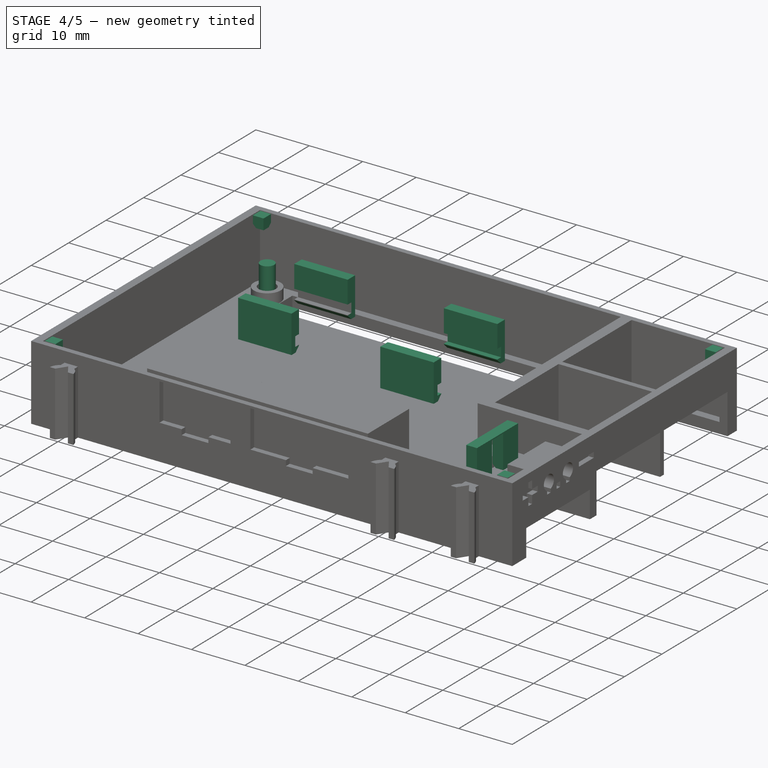
[diagram: stage 4 of 5 — iso view after this stage's code; geometry added in this stage tinted green]
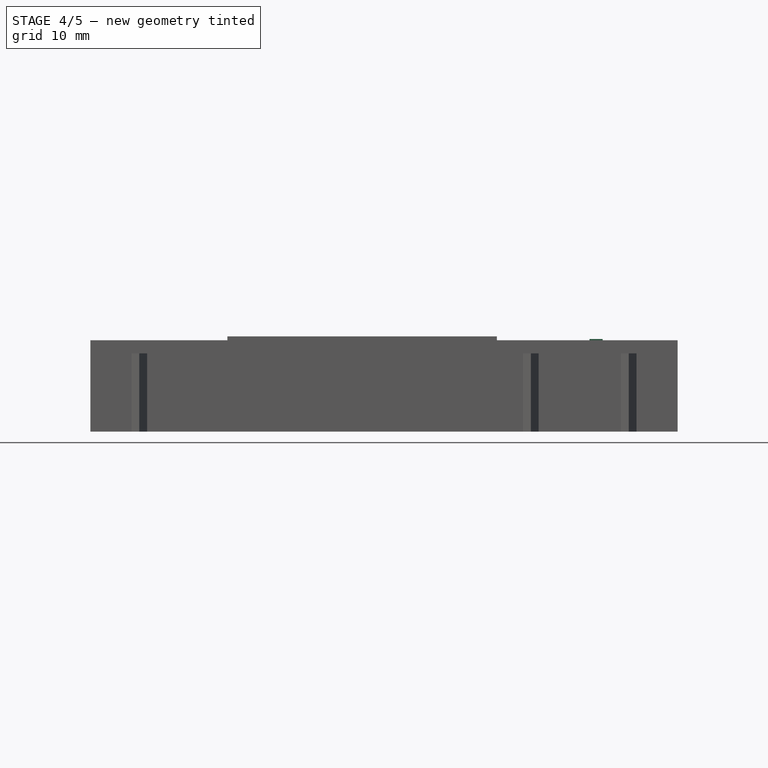
[diagram: stage 4 of 5 — front view after this stage's code; geometry added in this stage tinted green]
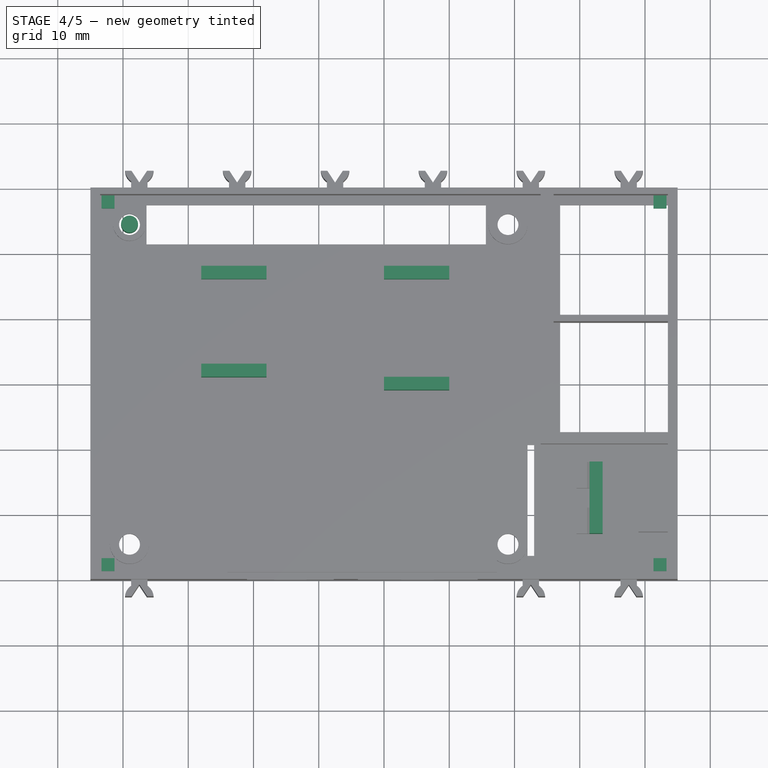
[diagram: stage 4 of 5 — top view after this stage's code; geometry added in this stage tinted green]
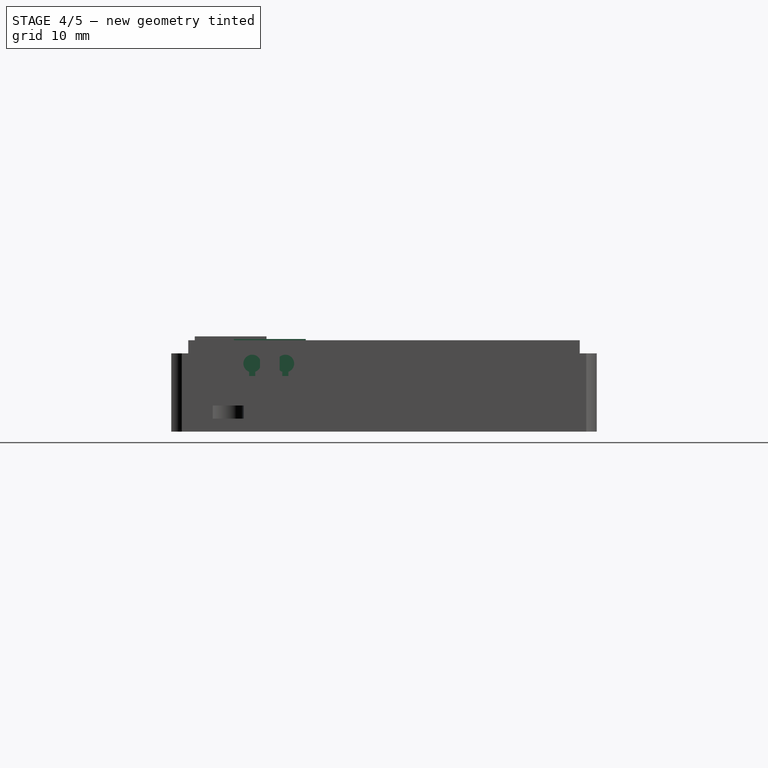
[diagram: stage 4 of 5 — right view after this stage's code; geometry added in this stage tinted green]
FEATURE [Part::Cylinder] Cylinder016  label="Zylinder016"
  Angle = 360
  AttacherType = Attacher::AttachEngine3D
  Height = 8
  Placement = pos=(-39,24.5,0) rot=(0,0,1;0rad)
  Radius = 1.3
FEATURE [Part::Box] Box014  label="Würfel011"
  AttacherType = Attacher::AttachEngine3D
  Height = 2
  Length = 2
  Placement = pos=(41.3,26.8,14) rot=(0,0,1;0rad)
  Width = 2
FEATURE [Part::Box] Box015  label="Würfel012"
  AttacherType = Attacher::AttachEngine3D
  Height = 2
  Length = 2
  Placement = pos=(41.3,-28.8,14) rot=(0,0,1;0rad)
  Width = 2
FEATURE [Part::MultiFuse] Fusion019
  Shapes = -> [Box014,Box015]
FEATURE [Part::Box] Box016  label="Würfel013"
  AttacherType = Attacher::AttachEngine3D
  Height = 2
  Length = 2
  Placement = pos=(41.3,26.8,14) rot=(0,0,1;0rad)
  Width = 2
FEATURE [Part::Box] Box017  label="Würfel014"
  AttacherType = Attacher::AttachEngine3D
  Height = 2
  Length = 2
  Placement = pos=(41.3,-28.8,14) rot=(0,0,1;0rad)
  Width = 2
FEATURE [Part::MultiFuse] Fusion020
  Placement = pos=(-84.6,0,0) rot=(0,0,1;0rad)
  Shapes = -> [Box016,Box017]
FEATURE [Part::MultiFuse] Fusion021
  Shapes = -> [Fusion019,Fusion020]
FEATURE [Part::Chamfer] Chamfer002  label="Zentrierer"
  Base = -> Fusion021
  Edges = 8 edges r=0.6: [Edge6,Edge12,Edge18,Edge22,Edge26,Edge36,Edge38,Edge46]
  Placement = pos=(0,0,28) rot=(1,0,0;3.14159rad)
FEATURE [Part::Box] Box024  label="Buchsenstütze"
  AttacherType = Attacher::AttachEngine3D
  Height = 6.4
  Length = 2
  Placement = pos=(31.5,-23,7.8) rot=(0,0,1;0rad)
  Width = 11
FEATURE [Part::Box] Box026  label="Buchsenstütze001"
  AttacherType = Attacher::AttachEngine3D
  Height = 7
  Length = 2
  Placement = pos=(31.5,-19,7) rot=(0,0,1;0rad)
  Width = 3
FEATURE [Part::Cut] Cut007  label="Buchsenstütze Kabelschlitz"
  Base = -> Box024
  Tool = -> Box026
FEATURE [Part::Chamfer] Chamfer004  label="Buchsenstütze Deckel"
  Base = -> Cut007
  Edges = 2 edges r=0.6: [Edge3,Edge7]
FEATURE [Part::Box] Box031  label="Würfel018"
  AttacherType = Attacher::AttachEngine3D
  Height = 7
  Length = 10
  Placement = pos=(0,-1,7) rot=(0,0,1;0rad)
  Width = 2
FEATURE [Part::Chamfer] Chamfer005  label="StepDownSupport1"
  Base = -> Box031
  Edges = 1 edges r=0.9: [Edge11]
FEATURE [Part::Box] Box032  label="Würfel019"
  AttacherType = Attacher::AttachEngine3D
  Height = 7
  Length = 10
  Placement = pos=(0,-1,7) rot=(0,0,1;0rad)
  Width = 2
FEATURE [Part::Chamfer] Chamfer006  label="StepDownSupport2"
  Base = -> Box032
  Edges = 1 edges r=0.9: [Edge11]
  Placement = pos=(10,17,0) rot=(0,0,1;3.14159rad)
FEATURE [Part::Box] Box033  label="Würfel020"
  AttacherType = Attacher::AttachEngine3D
  Height = 7
  Length = 10
  Placement = pos=(0,-1,7) rot=(0,0,1;0rad)
  Width = 2
FEATURE [Part::Chamfer] Chamfer007  label="LSSupport1"
  Base = -> Box033
  Edges = 1 edges r=0.9: [Edge11]
  Placement = pos=(-18,17,0) rot=(0,0,1;3.14159rad)
FEATURE [Part::Box] Box034  label="Würfel021"
  AttacherType = Attacher::AttachEngine3D
  Height = 7
  Length = 10
  Placement = pos=(0,-1,7) rot=(0,0,1;0rad)
  Width = 2
FEATURE [Part::Chamfer] Chamfer008  label="LSSupport2"
  Base = -> Box034
  Edges = 1 edges r=0.9: [Edge11]
  Placement = pos=(-28,2,0) rot=(0,0,1;0rad)
FEATURE [Part::Box] Box035  label="Stepdown001"
  AttacherType = Attacher::AttachEngine3D
  Height = 1.8
  Length = 22
  Placement = pos=(-6,0,8) rot=(0,0,1;0rad)
  Width = 17
FEATURE [Part::MultiFuse] Fusion027  label="StepDownSupport"
  Shapes = -> [Chamfer005,Chamfer006]
FEATURE [Part::Cut] Cut009  label="StepDownHalter"
  Base = -> Fusion027
  Tool = -> Box035
FEATURE [Part::MultiFuse] Fusion028  label="LSSupport"
  Shapes = -> [Chamfer007,Chamfer008]
FEATURE [Part::Cut] Cut010  label="LSHalter"
  Base = -> Fusion028
  Tool = -> Box036
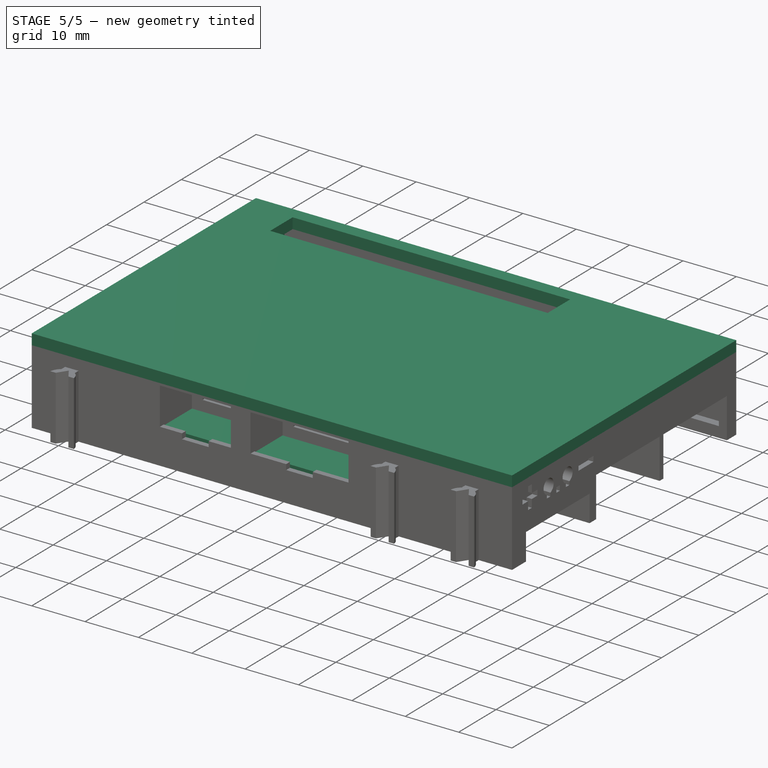
[diagram: stage 5 of 5 — iso view after this stage's code; geometry added in this stage tinted green]
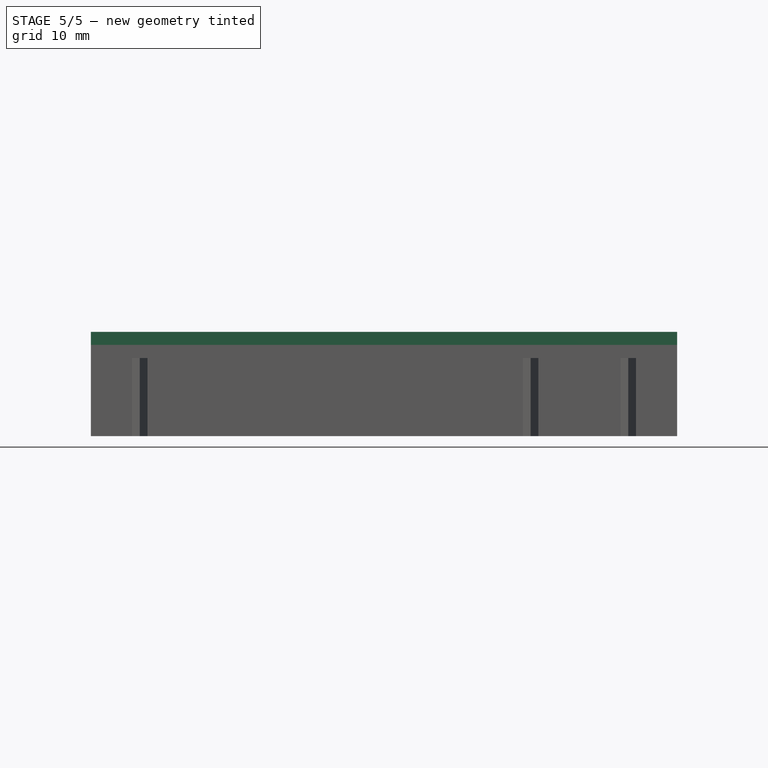
[diagram: stage 5 of 5 — front view after this stage's code; geometry added in this stage tinted green]
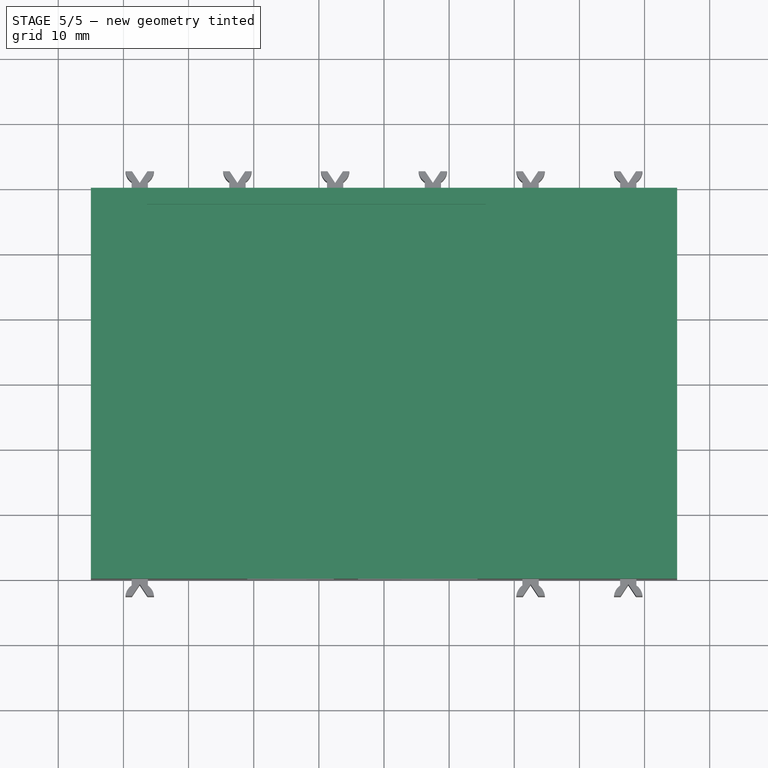
[diagram: stage 5 of 5 — top view after this stage's code; geometry added in this stage tinted green]
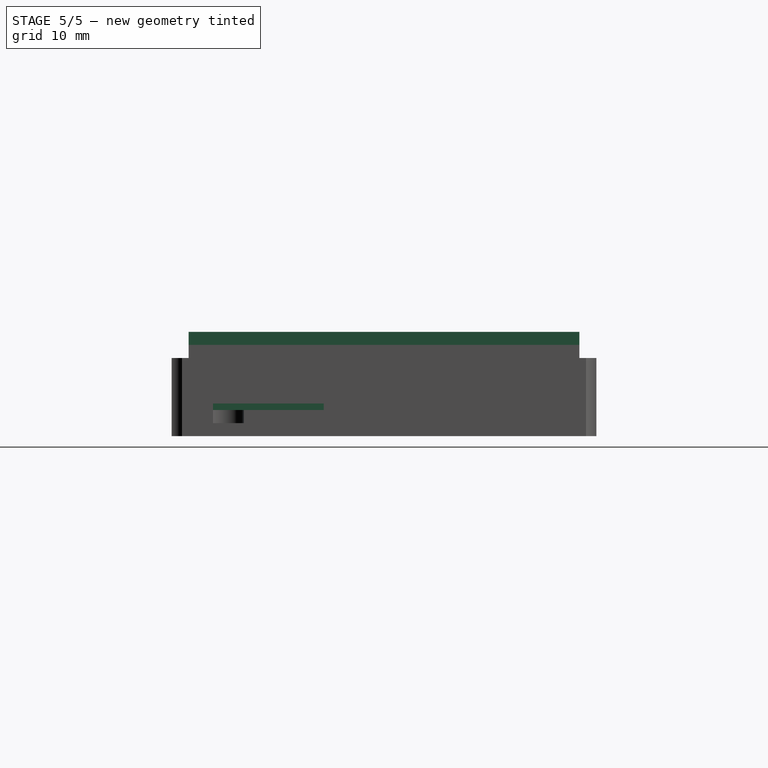
[diagram: stage 5 of 5 — right view after this stage's code; geometry added in this stage tinted green]
FEATURE [Part::Box] Box009  label="Deckel geom."
  AttacherType = Attacher::AttachEngine3D
  Height = 2
  Length = 90
  Placement = pos=(-45,-30,14) rot=(0,0,1;0rad)
  Width = 60
FEATURE [Part::Box] Box011  label="Stack-Öffnung"
  AttacherType = Attacher::AttachEngine3D
  Height = 2
  Length = 52
  Placement = pos=(-36.38,21.5,14) rot=(0,0,1;0rad)
  Width = 6
FEATURE [Part::Cut] Cut003  label="Deckel mit Öffnung"
  Base = -> Box009
  Tool = -> Box011
FEATURE [Part::Cylinder] Cylinder009  label="Zylinder009"
  Angle = 360
  AttacherType = Attacher::AttachEngine3D
  Height = 9
  Placement = pos=(-39,24.5,2) rot=(0,0,1;0rad)
  Radius = 3
FEATURE [Part::Cylinder] Cylinder010  label="Zylinder010"
  Angle = 360
  AttacherType = Attacher::AttachEngine3D
  Height = 9
  Placement = pos=(-39,-24.5,2) rot=(0,0,1;0rad)
  Radius = 3
FEATURE [Part::MultiFuse] Fusion013
  Placement = pos=(58,0,0) rot=(0,0,1;0rad)
  Shapes = -> [Cylinder010,Cylinder009]
FEATURE [Part::Cylinder] Cylinder011  label="Zylinder011"
  Angle = 360
  AttacherType = Attacher::AttachEngine3D
  Height = 9
  Placement = pos=(-39,-24.5,2) rot=(0,0,1;0rad)
  Radius = 3
FEATURE [Part::Cylinder] Cylinder012  label="Zylinder012"
  Angle = 360
  AttacherType = Attacher::AttachEngine3D
  Height = 9
  Placement = pos=(-39,24.5,2) rot=(0,0,1;0rad)
  Radius = 2.6
FEATURE [Part::MultiFuse] Fusion014
  Shapes = -> [Cylinder011,Cylinder012]
FEATURE [Part::MultiFuse] Fusion015  label="Stuetzen001"
  Placement = pos=(0,0,3.6) rot=(0,0,1;0rad)
  Shapes = -> [Fusion014,Fusion013]
FEATURE [Part::Cylinder] Cylinder013  label="Zylinder013"
  Angle = 360
  AttacherType = Attacher::AttachEngine3D
  Height = 8
  Placement = pos=(-39,-24.5,0) rot=(0,0,1;0rad)
  Radius = 1.3
FEATURE [Part::Cylinder] Cylinder014  label="Zylinder014"
  Angle = 360
  AttacherType = Attacher::AttachEngine3D
  Height = 8
  Placement = pos=(-39,24.5,0) rot=(0,0,1;0rad)
  Radius = 1.3
FEATURE [Part::Cylinder] Cylinder015  label="Zylinder015"
  Angle = 360
  AttacherType = Attacher::AttachEngine3D
  Height = 8
  Placement = pos=(-39,-24.5,0) rot=(0,0,1;0rad)
  Radius = 1.3
FEATURE [Part::MultiFuse] Fusion017
  Placement = pos=(58,0,0) rot=(0,0,1;0rad)
  Shapes = -> [Cylinder015,Cylinder014]
FEATURE [Part::MultiFuse] Fusion016
  Shapes = -> [Cylinder013,Cylinder016]
FEATURE [Part::MultiFuse] Fusion018  label="Bohrungen001"
  Placement = pos=(0,0,5.6) rot=(0,0,1;0rad)
  Shapes = -> [Fusion016,Fusion017]
FEATURE [Part::Cut] Cut004  label="Deckelstützen"
  Base = -> Fusion015
  Tool = -> Fusion018
FEATURE [Part::MultiFuse] Fusion022  label="Deckel mit Stützen"
  Shapes = -> [Chamfer004,Cut003,Cut004,Chamfer002]
FEATURE [Part::Box] Box028  label="Stepdown"
  AttacherType = Attacher::AttachEngine3D
  Height = 1.8
  Length = 22
  Placement = pos=(-6,0,8) rot=(0,0,1;0rad)
  Width = 17
FEATURE [Part::Box] Box029  label="Levelshifter"
  AttacherType = Attacher::AttachEngine3D
  Height = 1.8
  Length = 12.5
  Placement = pos=(-29,2,8) rot=(0,0,1;0rad)
  Width = 15
FEATURE [Part::Box] Box030  label="Protoboard"
  AttacherType = Attacher::AttachEngine3D
  Height = 1.6
  Length = 66
  Placement = pos=(-43,-28,4) rot=(0,0,1;0rad)
  Width = 56.5
FEATURE [Part::MultiFuse] Fusion029  label="Deckel mit PCBClips"
  Shapes = -> [Fusion022,Cut009,Cut010]
FEATURE [Part::MultiFuse] Fusion030  label="Deckel mit Buchsengehaeuse roh"
  Shapes = -> [Fusion029,Box041]
FEATURE [Part::Cut] Cut011  label="Deckel mit Buchsengehäuse"
  Base = -> Fusion030
  Tool = -> Fusion031
FEATURE [Part::Cut] Cut012  label="Deckel mit Buchsen"
  Base = -> Cut011
  Tool = -> Fusion033
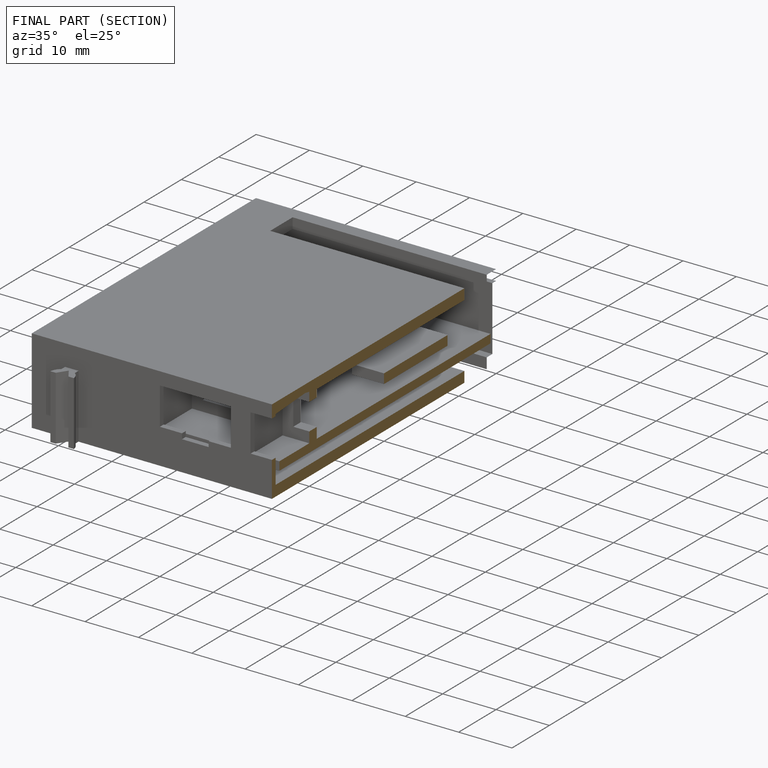
[diagram: finished part — half-section view (interior)]
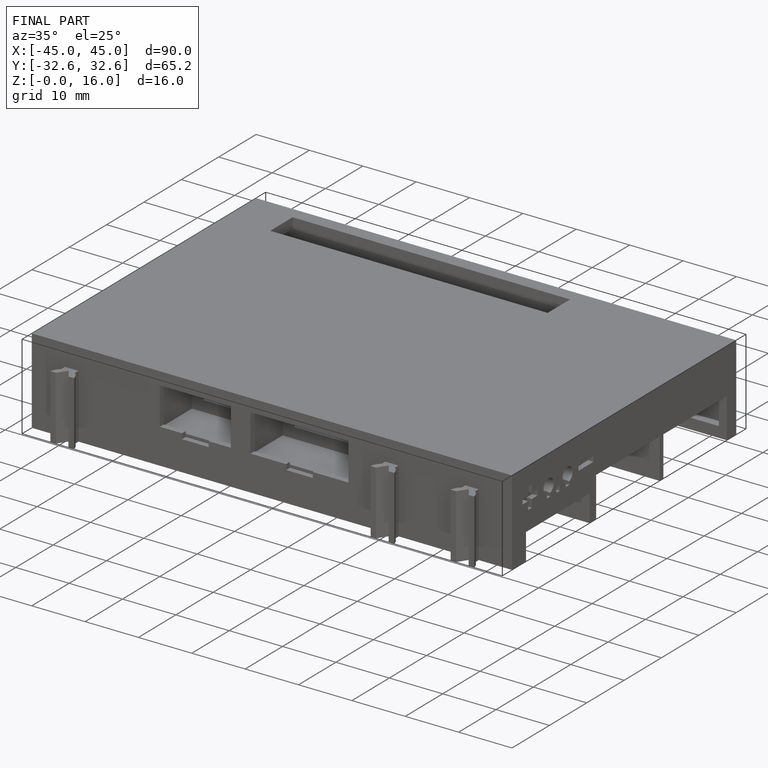
[diagram: finished part — iso view with bounding-box wireframe]
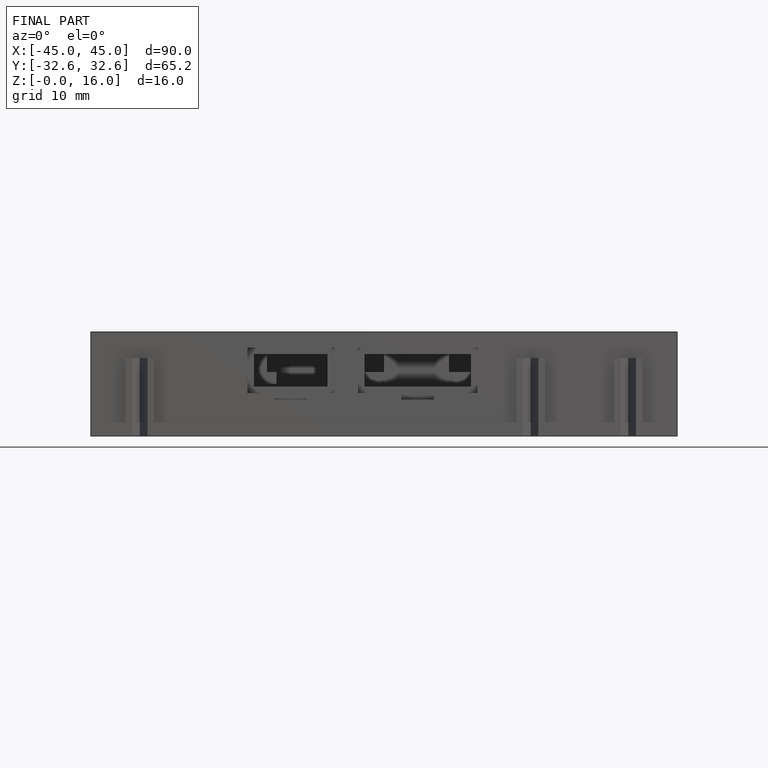
[diagram: finished part — front view with bounding-box wireframe]
